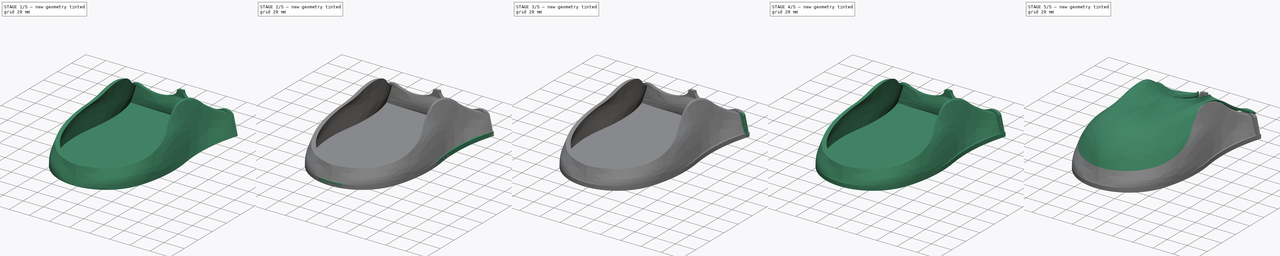
[diagram: build sequence overview — one tinted view per stage of 5, left to right]
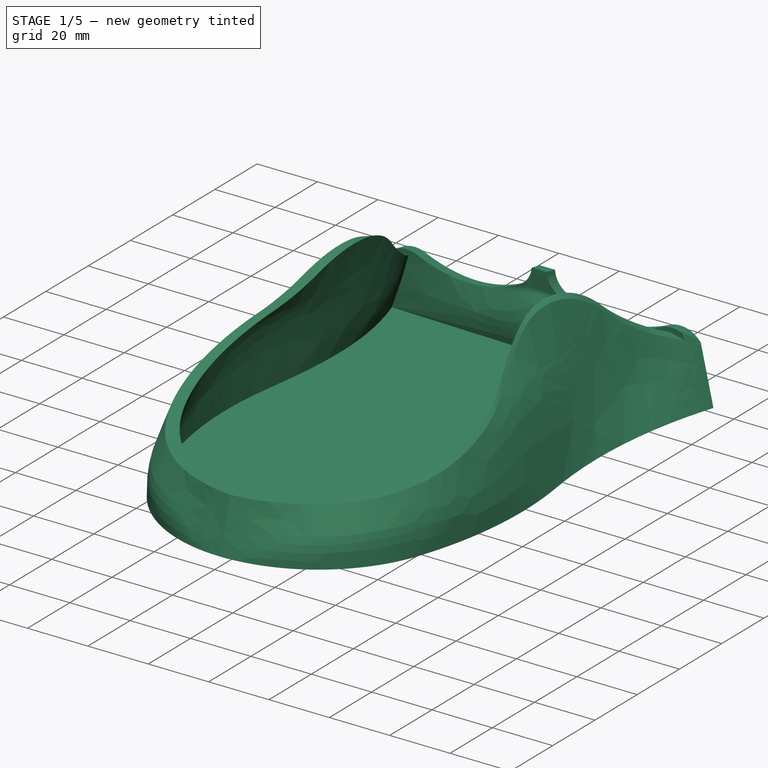
[diagram: stage 1 of 5 — iso view after this stage's code; geometry added in this stage tinted green]
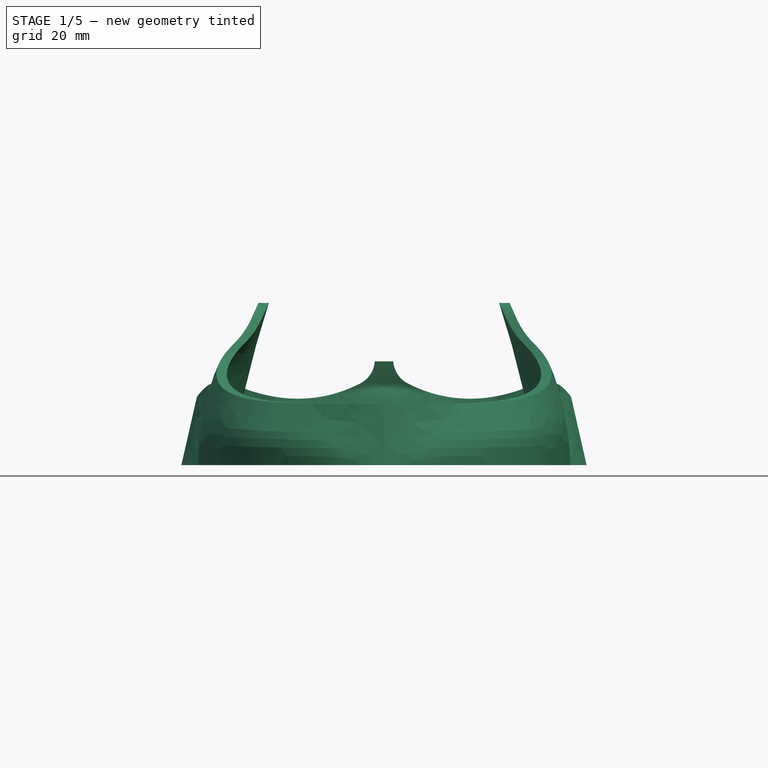
[diagram: stage 1 of 5 — front view after this stage's code; geometry added in this stage tinted green]
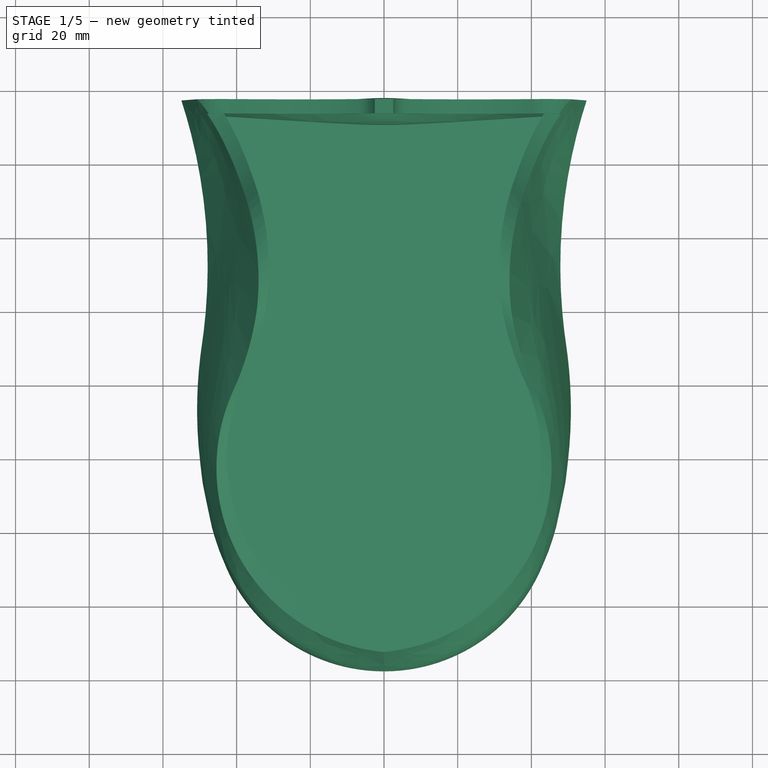
[diagram: stage 1 of 5 — top view after this stage's code; geometry added in this stage tinted green]
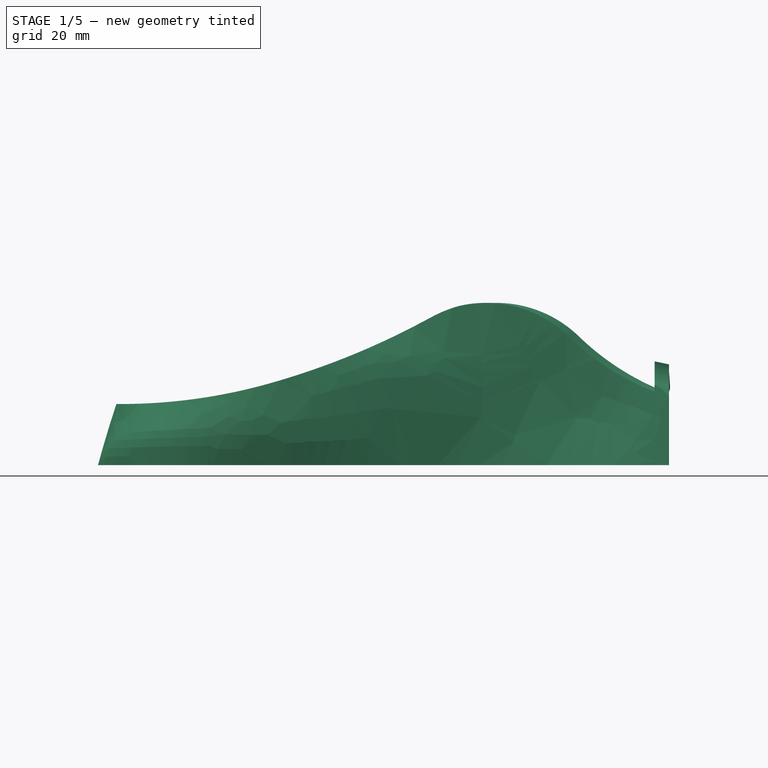
[diagram: stage 1 of 5 — right view after this stage's code; geometry added in this stage tinted green]
FCSTD DOCUMENT  (FreeCAD 2023.114R26244 +5346 (Git))
Label: Mouse
License: All rights reserved
LicenseURL: http://en.wikipedia.org/wiki/All_rights_reserved
objects: Part::FeaturePython×28, PartDesign::FeatureWrap×20, Sketcher::SketchObject×12, PartDesign::Solid×11, PartDesign::SubShapeBinder×9, Surface::Filling×8, Part::SubShapeBinder×6, PartDesign::Boolean×3, PartDesign::Mirrored×3, PartDesign::Pad×3, PartDesign::Split×3, PartDesign::Plane×2, App::FeaturePython×2, App::DocumentObjectGroup×2, PartDesign::Body×2, Spreadsheet::Sheet×1, Part::Mirroring×1, Part::Compound×1, PartDesign::Extrusion×1
note: 164 computed .brp shape members not serialized (recipe doc carries the construction recipe); baked Part::Feature solids carry a one-line shape summary decoded from their .brp

FEATURE [PartDesign::Solid] Split002_i2
  Active = true
  FixShape = 1
  InvalidShape = false
  Parent = -> Split002
  TreeRank = 495
  ValidateShape = false
FEATURE [PartDesign::Solid] Split002_i3
  Active = false
  FixShape = 1
  InvalidShape = false
  Parent = -> Split002
  TreeRank = 496
  ValidateShape = false
FEATURE [PartDesign::Solid] Split002_i4
  Active = false
  FixShape = 1
  InvalidShape = false
  Parent = -> Split002
  TreeRank = 497
  ValidateShape = false
FEATURE [PartDesign::Boolean] Boolean002
  BaseFeature = -> Split002
  ClaimAllChildren = false
  ExportMode = 0
  FixShape = 1
  Group = -> [Reference006,Reference007,Reference008]
  InvalidShape = false
  NewSolid = false
  Suppress = false
  TreeRank = 506
  Type = 0
  ValidateShape = false
  _ExportChildren = -> [Reference006,Reference007,Reference008]
  _GroupVersion = 1
FEATURE [Part::FeaturePython] Assembly  # WARN: FeaturePython — macro-defined, semantics opaque (R4)
  AutoRelax = true
  BuildShape = 0
  FixShape = 1
  Freeze = false
  Group = -> [Constraints,Elements,Parts]
  InvalidShape = false
  TreeRank = 511
  ValidateShape = false
  Verbose = false
  _LinkVersion = 1
  _SolverType = 1
  _Version = 1
FEATURE [Part::FeaturePython] Parts  # WARN: FeaturePython — macro-defined, semantics opaque (R4)
  FixShape = 1
  Group = -> [Body,Compound]
  GroupMode = 0
  InvalidShape = false
  TreeRank = 510
  ValidateShape = false
  _LinkVersion = 1
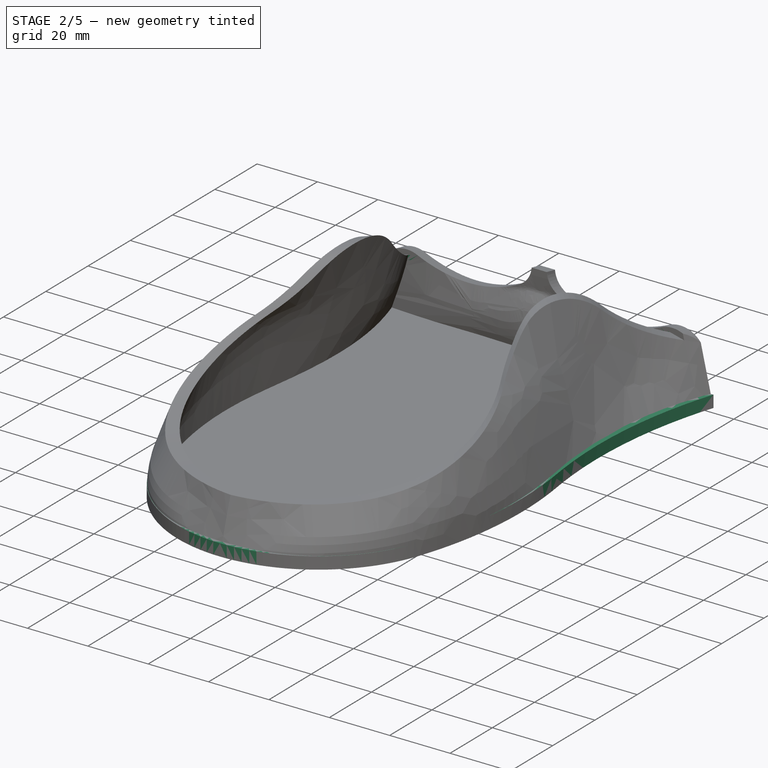
[diagram: stage 2 of 5 — iso view after this stage's code; geometry added in this stage tinted green]
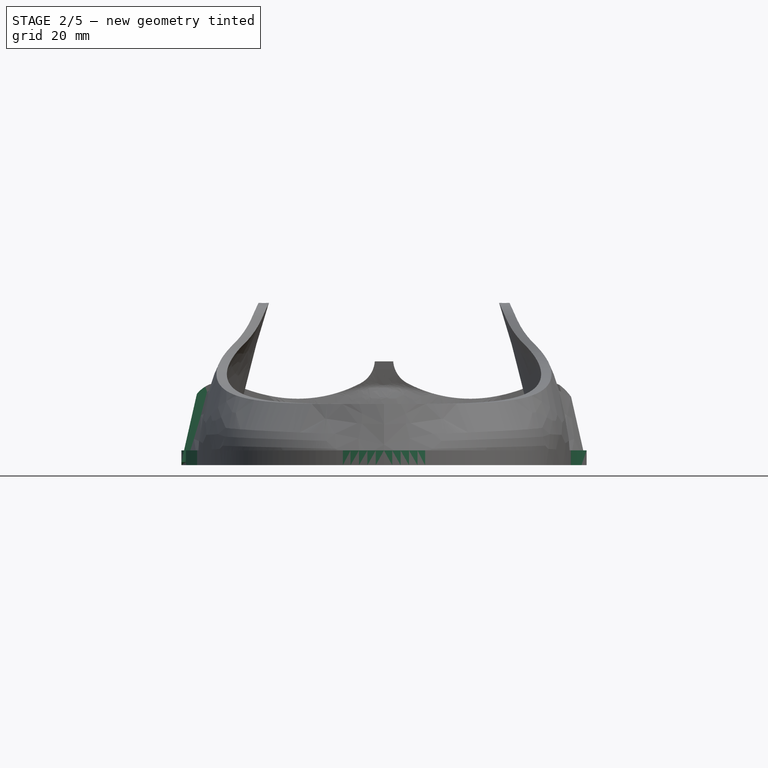
[diagram: stage 2 of 5 — front view after this stage's code; geometry added in this stage tinted green]
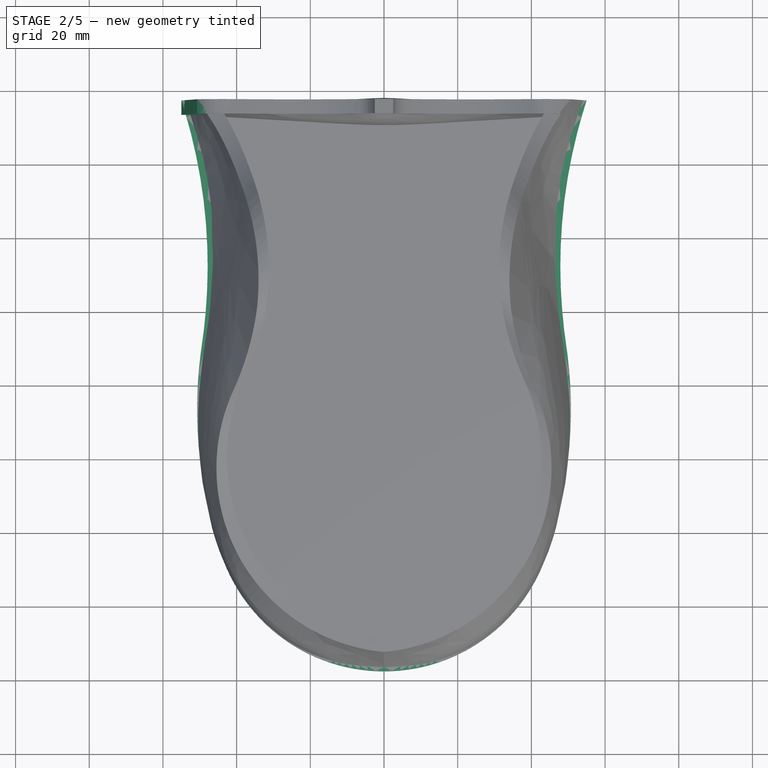
[diagram: stage 2 of 5 — top view after this stage's code; geometry added in this stage tinted green]
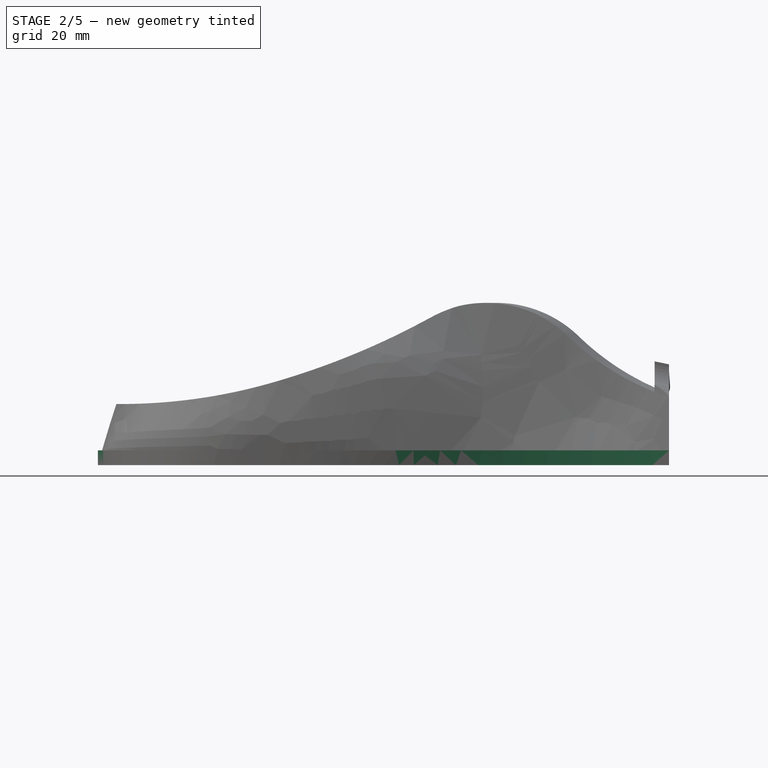
[diagram: stage 2 of 5 — right view after this stage's code; geometry added in this stage tinted green]
FEATURE [PartDesign::Solid] Split001_i1
  Active = true
  FixShape = 1
  InvalidShape = false
  Parent = -> Split001
  TreeRank = 483
  ValidateShape = false
FEATURE [PartDesign::Solid] Split001_i2
  Active = false
  FixShape = 1
  InvalidShape = false
  Parent = -> Split001
  TreeRank = 484
  ValidateShape = false
FEATURE [PartDesign::Split] Split002
  BaseFeature = -> Pad002
  FixShape = 1
  Fragment = false
  InvalidShape = false
  Mode = 0
  NewSolid = false
  Solids = -> [Split002_i0,Split002_i1,Split002_i2,Split002_i3,Split002_i4]
  Suppress = false
  Tolerance = 0
  Tools = -> [Wrap028,Boolean001]
  TreeRank = 487
  ValidateShape = false
  _Version = 1
FEATURE [PartDesign::Solid] Split002_i0
  Active = false
  FixShape = 1
  InvalidShape = false
  Parent = -> Split002
  TreeRank = 486
  ValidateShape = false
FEATURE [PartDesign::Solid] Split002_i1
  Active = false
  FixShape = 1
  InvalidShape = false
  Parent = -> Split002
  TreeRank = 488
  ValidateShape = false
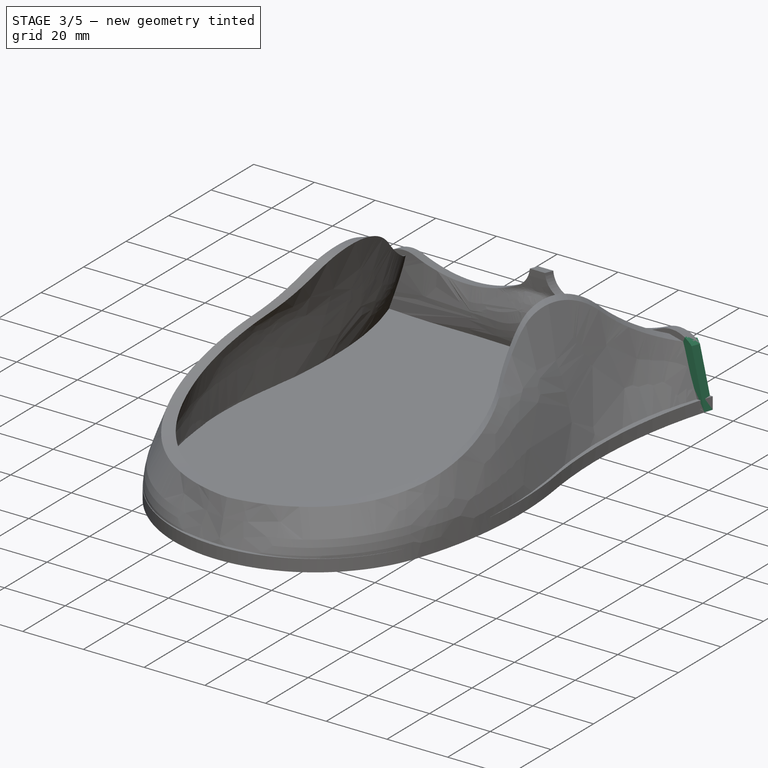
[diagram: stage 3 of 5 — iso view after this stage's code; geometry added in this stage tinted green]
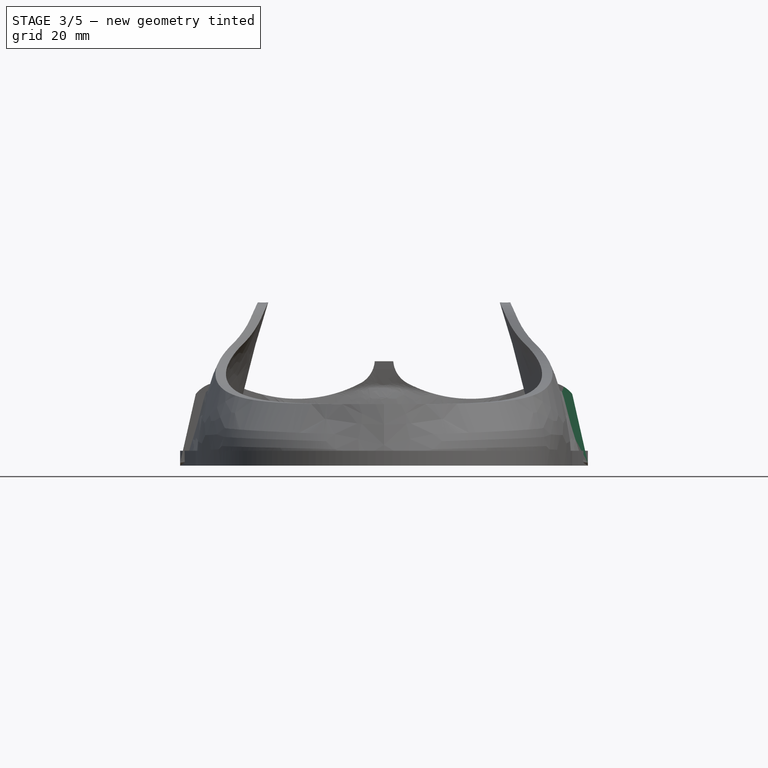
[diagram: stage 3 of 5 — front view after this stage's code; geometry added in this stage tinted green]
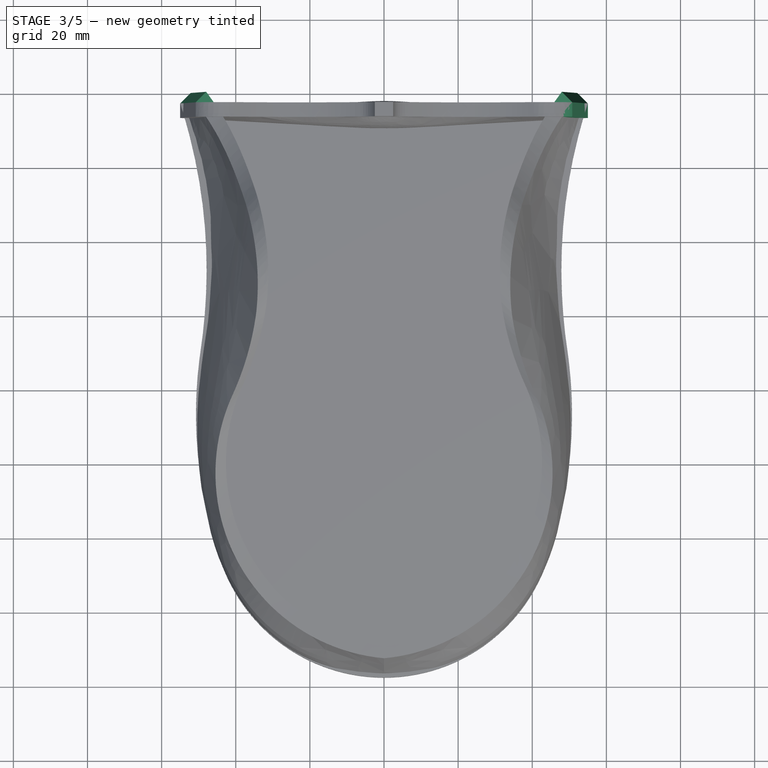
[diagram: stage 3 of 5 — top view after this stage's code; geometry added in this stage tinted green]
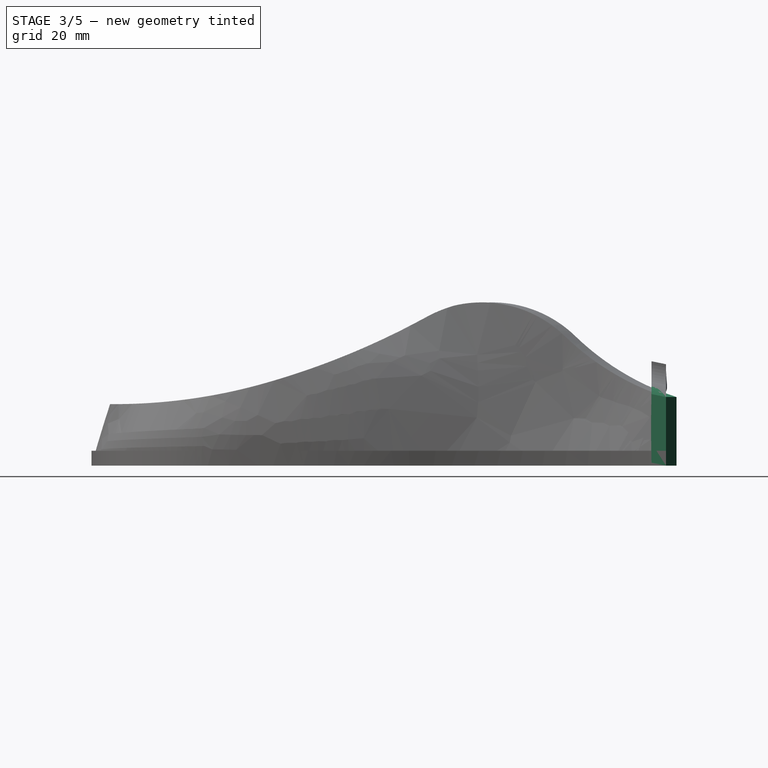
[diagram: stage 3 of 5 — right view after this stage's code; geometry added in this stage tinted green]
FEATURE [PartDesign::Pad] Pad003
  AddSubType = 0
  AlongSketchNormal = false
  AutoTaperInnerAngle = true
  CheckUpToFaceLimits = true
  ClaimChildren = false
  Direction = (-1.74783e-09,-0.997596,0.204912)
  Fit = 0
  FitJoin = 0
  FixShape = 1
  InnerFit = 0
  InnerFitJoin = 0
  InvalidShape = false
  Length = 4
  Length2 = 100
  Linearize = true
  NewSolid = true
  Profile = -> Wrap028 [Face1]
  Suppress = false
  TaperInnerAngle = 0
  TaperInnerAngleRev = 0
  TreeRank = 475
  Type = 0
  ValidateShape = false
  _ProfileBasedVersion = 1
  expr: Length = <<p>>.Wall * 2
FEATURE [PartDesign::Body] Body
  AutoGroupSolids = false
  ClaimAllChildren = false
  ExportMode = 0
  FixShape = 1
  Group = -> [Sketch014,Import,Import001,DatumPlane,Sketch,Sketch015,Import002,Wrap011,Wrap012,Wrap015,Mirrored,Sketch017,Sketch018,Wrap017,Wrap025,Extrusion,Boolean,Import004,DatumPlane001,Wrap026,Mirrored001,Wrap027,Wrap028,Pad,Mirrored002,Boolean001,Split,Pad003,Split_i0,Split_i1,Split_i2,Split001,Wrap029,Pad002,Split001_i0,Split001_i2,Split001_i1,Split002,Split002_i0,Split002_i1,Split002_i2,Split002_i3,+3 more]
  InvalidShape = false
  Origin = -> Origin
  Tip = -> Boolean002
  TreeRank = 498
  ValidateShape = false
  _ExportChildren = -> [Sketch014,Import,Import001,DatumPlane,Sketch,Sketch015,Import002,Wrap011,Wrap012,Wrap015,Mirrored,Sketch017,Sketch018,Wrap017,Wrap025,Extrusion,Import004,DatumPlane001,Wrap026,Mirrored001,Wrap027,Pad,Mirrored002,Split,Pad003,Split001,Wrap029,Pad002,Split002,Boolean002,Import005]
  _GroupVersion = 1
FEATURE [PartDesign::Split] Split
  BaseFeature = -> Boolean001
  FixShape = 1
  Fragment = false
  InvalidShape = false
  Mode = 0
  NewSolid = false
  Solids = -> [Split_i0,Split_i1,Split_i2]
  Suppress = false
  Tolerance = 0
  Tools = -> [Wrap028]
  TreeRank = 473
  ValidateShape = true
  _Version = 1
FEATURE [PartDesign::Solid] Split_i0
  Active = true
  FixShape = 1
  InvalidShape = false
  Parent = -> Split
  TreeRank = 471
  ValidateShape = false
FEATURE [PartDesign::Solid] Split_i1
  Active = false
  FixShape = 1
  InvalidShape = false
  Parent = -> Split
  TreeRank = 472
  ValidateShape = false
FEATURE [PartDesign::Solid] Split_i2
  Active = false
  FixShape = 1
  InvalidShape = false
  Parent = -> Split
  TreeRank = 474
  ValidateShape = false
FEATURE [PartDesign::Split] Split001
  BaseFeature = -> Pad003
  FixShape = 1
  Fragment = false
  InvalidShape = false
  Mode = 0
  NewSolid = false
  Solids = -> [Split001_i0,Split001_i1,Split001_i2]
  Suppress = false
  Tolerance = 0
  Tools = -> [Boolean]
  TreeRank = 478
  ValidateShape = false
  _Version = 1
FEATURE [PartDesign::Solid] Split001_i0
  Active = false
  FixShape = 1
  InvalidShape = false
  Parent = -> Split001
  TreeRank = 477
  ValidateShape = false
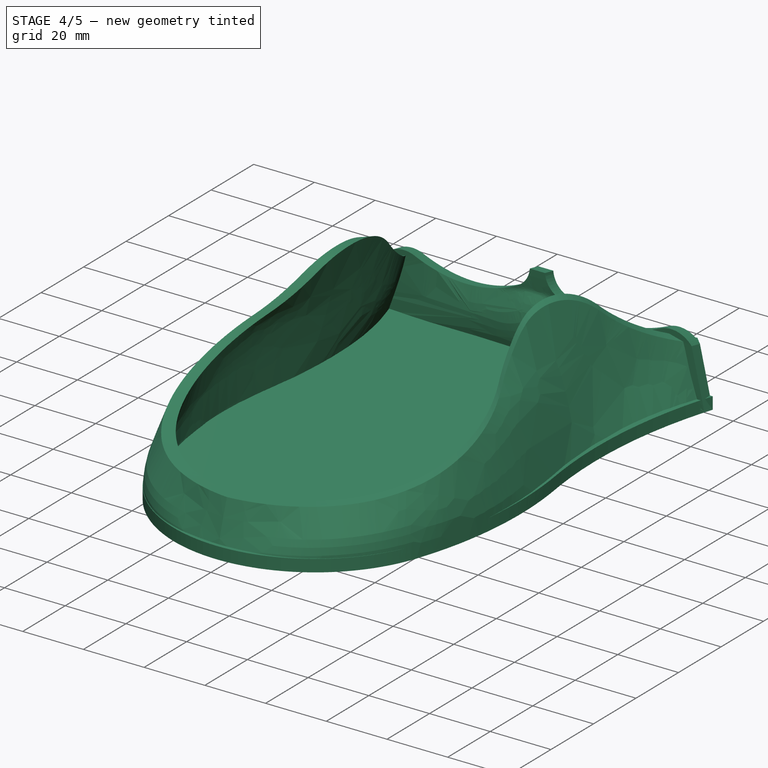
[diagram: stage 4 of 5 — iso view after this stage's code; geometry added in this stage tinted green]
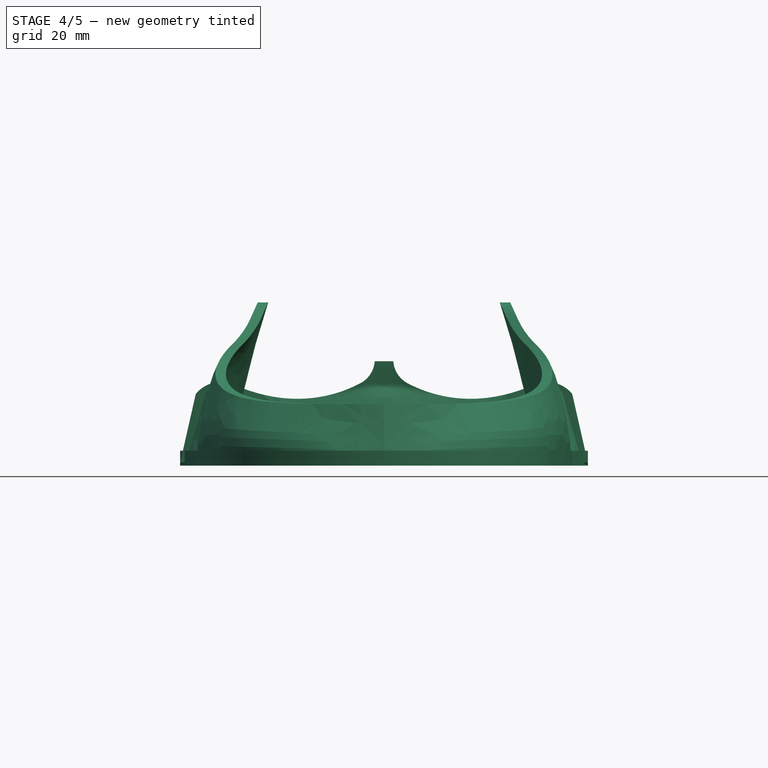
[diagram: stage 4 of 5 — front view after this stage's code; geometry added in this stage tinted green]
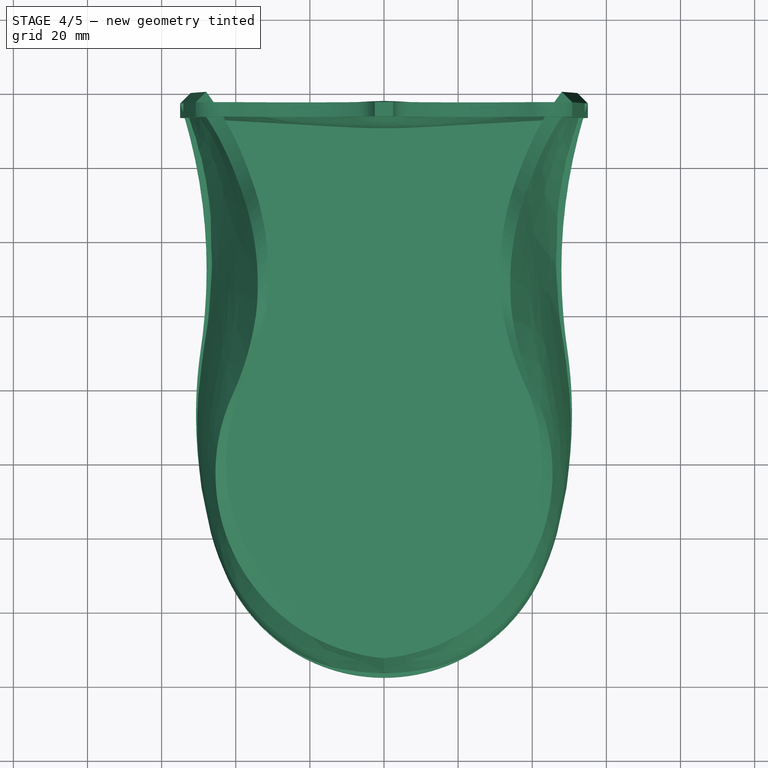
[diagram: stage 4 of 5 — top view after this stage's code; geometry added in this stage tinted green]
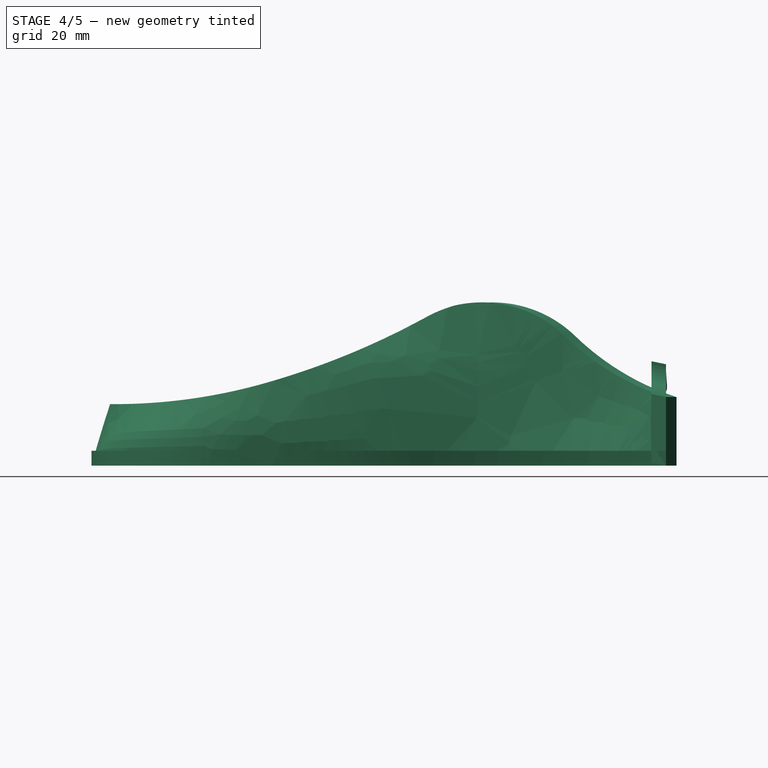
[diagram: stage 4 of 5 — right view after this stage's code; geometry added in this stage tinted green]
FEATURE [Sketcher::SketchObject] Sketch003  label="Top Outline"
  ArcFitTolerance = 1e-06
  AttachmentSupport = -> [XY_Plane001]
  ExternalBSplineMaxDegree = 5
  ExternalBSplineTolerance = 0.0001
  FixShape = 1
  FullyConstrained = false
  InternalTolerance = 1e-06
  InvalidShape = false
  MakeInternals = false
  MapMode = 5
  Support = -> [XY_Plane001]
  TreeRank = 64
  ValidateShape = false
  sketch-geometry (3):
    g0: ArcOfCircle CenterX=-110.422 CenterY=50.3952 CenterZ=0 NormalX=0 NormalY=0 NormalZ=1 AngleXU=0 Radius=76.6136 StartAngle=5.85042 EndAngle=6.94536
    g1: ArcOfCircle CenterX=4.51919 CenterY=-2.70465 CenterZ=0 NormalX=0 NormalY=0 NormalZ=1 AngleXU=0 Radius=50 StartAngle=2.70882 EndAngle=4.62188
    g2: GeomPoint X=-36.0276 Y=32.0877 Z=0
  constraints (7):
    c: PointOnObject(g1,g-2)
    c: Tangent(g1,g0) = 1.5708
    c: DistanceX(g-2,g0) = -50
    c: DistanceY(g1,g0) = 150
    c: PointOnObject(g2,g0)
    c: Radius(g1) = 50
    c: DistanceY(g1) = -52.5
FEATURE [Sketcher::SketchObject] Sketch004  label="Side Max Outline"
  ArcFitTolerance = 1e-06
  AttachmentSupport = -> [YZ_Plane001]
  ExternalBSplineMaxDegree = 5
  ExternalBSplineTolerance = 0.0001
  ExternalGeometry = -> [Sketch003]
  FixShape = 1
  FullyConstrained = true
  InternalTolerance = 1e-06
  InvalidShape = false
  MakeInternals = false
  MapMode = 5
  Placement = pos=(0,0,0) rot=(0.57735,0.57735,0.57735;2.0944rad)
  Support = -> [YZ_Plane001]
  TreeRank = 78
  ValidateShape = false
  sketch-geometry (4):
    g0: ArcOfCircle CenterX=-10.3258 CenterY=-14.1982 CenterZ=0 NormalX=0 NormalY=0 NormalZ=1 AngleXU=0 Radius=44.5 StartAngle=1.68733 EndAngle=2.81686
    g1: ArcOfCircle CenterX=6.999 CenterY=-162.188 CenterZ=0 NormalX=0 NormalY=0 NormalZ=1 AngleXU=0 Radius=193.5 StartAngle=1.45426 EndAngle=1.68733
    g2: ArcOfCircle CenterX=91.7878 CenterY=97.9142 CenterZ=0 NormalX=0 NormalY=0 NormalZ=1 AngleXU=0 Radius=85 StartAngle=4.21856 EndAngle=4.77964
    g3: ArcOfCircle CenterX=22.3471 CenterY=-31.0829 CenterZ=0 NormalX=0 NormalY=0 NormalZ=1 AngleXU=0 Radius=61.5 StartAngle=1.07697 EndAngle=1.45426
  constraints (13):
    c: Tangent(g1,g0) = -1.5708
    c: DistanceY(g0) = 30
    c: Horizontal(g1,g0)
    c: Tangent(g3,g1) = -1.5708
    c: Tangent(g3,g2) = 1.5708
    c: Radius(g0) = 44.5
    c: Radius(g1) = 193.5
    c: Radius(g3) = 61.5
    c: Radius(g2) = 85
    c: DistanceX(g0) = -15.5
    c: Vertical(g2,g-3)
    c: Coincident(g-4,g0)
    c: DistanceX(g1,g2) = 22
FEATURE [Sketcher::SketchObject] Sketch005  label="Click Outline"
  ArcFitTolerance = 1e-06
  ExternalBSplineMaxDegree = 5
  ExternalBSplineTolerance = 0.0001
  ExternalGeometry = -> [Sketch003,Sketch004]
  FixShape = 1
  FullyConstrained = true
  InternalTolerance = 1e-06
  InvalidShape = false
  MakeInternals = false
  Placement = pos=(-19.3333,97.5,3.88855) rot=(1,0,0;1.5708rad)
  TreeRank = 72
  ValidateShape = false
  sketch-geometry (3):
    g0: ArcOfCircle CenterX=-23.684 CenterY=-4.7603 CenterZ=0 NormalX=0 NormalY=0 NormalZ=1 AngleXU=0 Radius=9.39 StartAngle=1.1287 EndAngle=2.40927
    g1: ArcOfCircle CenterX=-4.47852 CenterY=35.8138 CenterZ=0 NormalX=0 NormalY=0 NormalZ=1 AngleXU=0 Radius=35.5 StartAngle=4.27029 EndAngle=5.17401
    g2: ArcOfCircle CenterX=9.70761 CenterY=7.29759 CenterZ=0 NormalX=0 NormalY=0 NormalZ=1 AngleXU=0 Radius=3.65 StartAngle=5.17401 EndAngle=6.39858
  constraints (11):
    c: Tangent(g1,g0) = 1.5708
    c: Tangent(g2,g1) = -1.5708
    c: Radius(g2) = 3.65
    c: Radius(g1) = 35.5
    c: DistanceX(g0,g1) = 31
    c: Radius(g0) = 9.39
    c: DistanceY(g0,g2) = 6.2
    c: Vertical(g0,g-3)
    c: DistanceY(g2,g-4) = 1.5
    c: DistanceX(g0,g2) = 44
    c: DistanceX(g1,g2) = 2
FEATURE [Sketcher::SketchObject] Sketch006  label="Click Side"
  ArcFitTolerance = 1e-06
  AttachmentSupport = -> [Sketch005,Sketch003]
  ExternalBSplineMaxDegree = 5
  ExternalBSplineTolerance = 0.0001
  ExternalGeometry = -> [Sketch005,Sketch003]
  FixShape = 1
  FullyConstrained = true
  InternalTolerance = 1e-06
  InvalidShape = false
  MakeInternals = false
  MapMode = 13
  Placement = pos=(-45.3425,75.6959,1.80213) rot=(0.658121,-0.532389,-0.532389;1.97747rad)
  Support = -> [Sketch005,Sketch003]
  TreeRank = 67
  ValidateShape = false
  sketch-geometry (2):
    g0: ArcOfCircle CenterX=4.02138 CenterY=-135.427 CenterZ=0 NormalX=0 NormalY=0 NormalZ=1 AngleXU=0 Radius=141.5 StartAngle=1.35008 EndAngle=1.75787
    g1: ArcOfCircle CenterX=29.5267 CenterY=-21.7531 CenterZ=0 NormalX=0 NormalY=0 NormalZ=1 AngleXU=0 Radius=25 StartAngle=0.924032 EndAngle=1.35008
  constraints (6):
    c: Coincident(g0,g-3)
    c: Coincident(g1,g-5)
    c: Tangent(g1,g0) = -1.5708
    c: Radius(g0) = 141.5
    c: Radius(g1) = 25
    c: DistanceX(g0) = 35
FEATURE [Sketcher::SketchObject] Sketch011  label="Side Min Outline"
  ArcFitTolerance = 1e-06
  ExternalBSplineMaxDegree = 5
  ExternalBSplineTolerance = 0.0001
  ExternalGeometry = -> [Sketch003,Sketch005,Sketch004]
  FixShape = 1
  FullyConstrained = false
  InternalTolerance = 1e-06
  InvalidShape = false
  MakeInternals = false
  Placement = pos=(0,0,0) rot=(0.57735,0.57735,0.57735;2.0944rad)
  TreeRank = 107
  ValidateShape = false
  sketch-geometry (4):
    g0: ArcOfCircle CenterX=142.357 CenterY=106.065 CenterZ=0 NormalX=0 NormalY=0 NormalZ=1 AngleXU=0 Radius=110.201 StartAngle=4.03919 EndAngle=4.29317
    g1: ArcOfCircle CenterX=50.5274 CenterY=-9.08571 CenterZ=0 NormalX=0 NormalY=0 NormalZ=1 AngleXU=0 Radius=37.0821 StartAngle=0.897599 EndAngle=2.07234
    g2: ArcOfCircle CenterX=-67.4181 CenterY=206.024 CenterZ=0 NormalX=0 NormalY=0 NormalZ=1 AngleXU=0 Radius=208.241 StartAngle=4.98613 EndAngle=5.21393
    g3: ArcOfCircle CenterX=-51.3554 CenterY=148.82 CenterZ=0 NormalX=0 NormalY=0 NormalZ=1 AngleXU=0 Radius=148.825 StartAngle=4.7047 EndAngle=4.98613
  constraints (5):
    c: Tangent(g1,g0) = 1.5708
    c: Tangent(g2,g1) = 1.5708
    c: Tangent(g2,g3) = -1.5708
    c: Coincident(g3,g-5)
    c: Coincident(g-6,g0)
FEATURE [Sketcher::SketchObject] Sketch013  label="Click Outline Top"
  ArcFitTolerance = 1e-06
  ExternalBSplineMaxDegree = 5
  ExternalBSplineTolerance = 0.0001
  ExternalGeometry = -> [Sketch005]
  FixShape = 1
  FullyConstrained = true
  InternalTolerance = 1e-06
  InvalidShape = false
  MakeInternals = false
  TreeRank = 111
  ValidateShape = false
  sketch-geometry (3):
    g0: ArcOfCircle CenterX=-38.5322 CenterY=114.492 CenterZ=0 NormalX=0 NormalY=0 NormalZ=1 AngleXU=0 Radius=20.5 StartAngle=4.11872 EndAngle=5.25196
    g1: ArcOfCircle CenterX=-17.4678 CenterY=79.3173 CenterZ=0 NormalX=0 NormalY=0 NormalZ=1 AngleXU=0 Radius=20.5 StartAngle=1.09073 EndAngle=2.11037
    g2: ArcOfCircle CenterX=-10.3092 CenterY=93.0652 CenterZ=0 NormalX=0 NormalY=0 NormalZ=1 AngleXU=0 Radius=5 StartAngle=0.531906 EndAngle=1.09073
  constraints (9):
    c: Radius(g0) = 20.5
    c: Radius(g1) = 20.5
    c: Radius(g2) = 5
    c: Tangent(g1,g0) = 1.5708
    c: Tangent(g2,g1) = -1.5708
    c: Coincident(g0,g-3)
    c: DistanceX(g0) = -28
    c: Coincident(g-5,g1)
    c: Vertical(g2,g-4)
FEATURE [Part::FeaturePython] Mixed_curve001  label="Mixed_curve002"  # WARN: FeaturePython — macro-defined, semantics opaque (R4)
  Active = false
  ApproxTolerance = 0.001
  Continuity = 5
  DegreeMax = 5
  DegreeMin = 3
  Direction1 = (0,0,0)
  Direction2 = (0,0,0)
  FillFace1 = false
  FillFace2 = false
  FixShape = 1
  InvalidShape = false
  Parametrization = 0
  Samples = 100
  Shape1 = -> Sketch005
  Shape2 = -> Sketch013
  TreeRank = 112
  ValidateShape = false
FEATURE [PartDesign::FeatureWrap] Wrap002  label="Mixed_curve003"
  AddSubType = 0
  FixShape = 1
  Frozen = false
  InvalidShape = false
  NewSolid = false
  Suppress = false
  TreeRank = 113
  Type = 2
  ValidateShape = false
  WrapFeature = -> Mixed_curve001
FEATURE [Part::FeaturePython] Mixed_curve002  label="Mixed_curve004"  # WARN: FeaturePython — macro-defined, semantics opaque (R4)
  Active = false
  ApproxTolerance = 0.001
  Continuity = 5
  DegreeMax = 5
  DegreeMin = 3
  Direction1 = (0,0,0)
  Direction2 = (0,0,0)
  FillFace1 = false
  FillFace2 = false
  FixShape = 1
  InvalidShape = false
  Parametrization = 0
  Samples = 100
  Shape1 = -> Sketch011
  Shape2 = -> Sketch003
  TreeRank = 116
  ValidateShape = false
FEATURE [PartDesign::FeatureWrap] Wrap003  label="Mixed_curve005"
  AddSubType = 0
  FixShape = 1
  Frozen = false
  InvalidShape = false
  NewSolid = false
  Suppress = false
  TreeRank = 117
  Type = 2
  ValidateShape = false
  WrapFeature = -> Mixed_curve002
FEATURE [Part::FeaturePython] Freehand_BSpline001  label="Freehand_BSpline002"  # WARN: FeaturePython — macro-defined, semantics opaque (R4)
  Data = (4) [(6.31239e-15,51.498,23.0695),(-4.22175,60.8034,20.018),(-4.90672,73.5989,15.6061),(-6,95.6011,10.7659)]
  DataType = [1,0,0,1]
  FixShape = 1
  InvalidShape = false
  Parametrization = 1
  Periodic = false
  Support = -> [Sketch004,Wrap002]
  Tangents = (4) [(0,0,0),(0,0,0),(0,0,0),(0,0,0)]
  Tolerance = 1e-05
  TreeRank = 120
  ValidateShape = false
FEATURE [PartDesign::FeatureWrap] Wrap004  label="Click Connect"
  AddSubType = 0
  FixShape = 1
  Frozen = false
  InvalidShape = false
  NewSolid = false
  Suppress = false
  TreeRank = 121
  Type = 2
  ValidateShape = false
  WrapFeature = -> Freehand_BSpline001
FEATURE [Part::FeaturePython] Freehand_BSpline002  label="Freehand_BSpline004"  # WARN: FeaturePython — macro-defined, semantics opaque (R4)
  Data = (5) [(-16.9635,99.8111,4.86921),(-16.0424,83.8443,6.5435),(-15.5227,61.2399,17.5526),(-8.75412,45.1169,23.0088),(-1.11468e-16,29.498,30)]
  DataType = [1,0,0,0,1]
  FixShape = 1
  InvalidShape = false
  Parametrization = 1
  Periodic = false
  Support = -> [Wrap002,Sketch004]
  Tangents = (5) [(0,0,0),(0,0,0),(0,0,0),(0,0,0),(0,0,0)]
  Tolerance = 1e-05
  TreeRank = 124
  ValidateShape = false
FEATURE [PartDesign::FeatureWrap] Wrap005  label="Finger Groove"
  AddSubType = 0
  FixShape = 1
  Frozen = false
  InvalidShape = false
  NewSolid = false
  Suppress = false
  TreeRank = 125
  Type = 2
  ValidateShape = false
  WrapFeature = -> Freehand_BSpline002
FEATURE [Part::FeaturePython] Freehand_BSpline003  label="Freehand_BSpline006"  # WARN: FeaturePython — macro-defined, semantics opaque (R4)
  Data = (3) [(-7.19589e-15,-1.27177,31.1356),(-29.1445,10.6827,29.374),(-40.8712,18.2646,16.2275)]
  DataType = [1,0,1]
  FixShape = 1
  InvalidShape = false
  Parametrization = 1
  Periodic = false
  Support = -> [Sketch004,Wrap003]
  Tangents = (3) [(0,0,0),(0,0,0),(0,0,0)]
  Tolerance = 1e-05
  TreeRank = 128
  ValidateShape = false
FEATURE [PartDesign::FeatureWrap] Wrap006  label="Side Rib"
  AddSubType = 0
  FixShape = 1
  Frozen = false
  InvalidShape = false
  NewSolid = false
  Suppress = false
  TreeRank = 129
  Type = 2
  ValidateShape = false
  WrapFeature = -> Freehand_BSpline003
FEATURE [Part::FeaturePython] JoinCurve  # WARN: FeaturePython — macro-defined, semantics opaque (R4)
  Active = false
  ApproxTolerance = 0.001
  Continuity = 5
  CornerBreak = false
  DegreeMax = 5
  DegreeMin = 3
  Edges = -> [Wrap003]
  FixShape = 1
  ForceClosed = false
  ForceContact = true
  InvalidShape = false
  Parametrization = 0
  Reverse = false
  Samples = 100
  StartOffset = 0
  Tolerance = 0.01
  TreeRank = 132
  ValidateShape = false
FEATURE [PartDesign::FeatureWrap] Wrap007  label="JoinCurve001"
  AddSubType = 0
  FixShape = 1
  Frozen = false
  InvalidShape = false
  NewSolid = false
  Suppress = false
  TreeRank = 133
  Type = 2
  ValidateShape = false
  WrapFeature = -> JoinCurve
FEATURE [Part::FeaturePython] JoinCurve001  label="JoinCurve002"  # WARN: FeaturePython — macro-defined, semantics opaque (R4)
  Active = false
  ApproxTolerance = 0.001
  Continuity = 5
  CornerBreak = false
  DegreeMax = 5
  DegreeMin = 3
  Edges = -> [Wrap002]
  FixShape = 1
  ForceClosed = false
  ForceContact = true
  InvalidShape = false
  Parametrization = 0
  Reverse = false
  Samples = 100
  StartOffset = 0
  Tolerance = 0.01
  TreeRank = 136
  ValidateShape = false
FEATURE [PartDesign::FeatureWrap] Wrap008  label="JoinCurve003"
  AddSubType = 0
  FixShape = 1
  Frozen = false
  InvalidShape = false
  NewSolid = false
  Suppress = false
  TreeRank = 137
  Type = 2
  ValidateShape = false
  WrapFeature = -> JoinCurve001
FEATURE [Part::FeaturePython] JoinCurve002  label="JoinCurve004"  # WARN: FeaturePython — macro-defined, semantics opaque (R4)
  Active = false
  ApproxTolerance = 0.001
  Continuity = 5
  CornerBreak = false
  DegreeMax = 5
  DegreeMin = 3
  Edges = -> [Sketch004]
  FixShape = 1
  ForceClosed = false
  ForceContact = true
  InvalidShape = false
  Parametrization = 0
  Reverse = false
  Samples = 100
  StartOffset = 0
  Tolerance = 0.01
  TreeRank = 140
  ValidateShape = false
FEATURE [PartDesign::FeatureWrap] Wrap009  label="JoinCurve005"
  AddSubType = 0
  FixShape = 1
  Frozen = false
  InvalidShape = false
  NewSolid = false
  Suppress = false
  TreeRank = 141
  Type = 2
  ValidateShape = false
  WrapFeature = -> JoinCurve002
FEATURE [Part::FeaturePython] Gordon  label="Top Shell Half"  # WARN: FeaturePython — macro-defined, semantics opaque (R4)
  FixShape = 1
  FlipNormal = false
  InvalidShape = false
  MaxCtrlPts = 80
  Output = 0
  SamplesU = 16
  SamplesV = 16
  Sources = -> [Wrap009,Wrap007,Wrap008,Wrap004,Wrap005,Wrap006]
  Tol2D = 1e-05
  Tol3D = 0.1
  TreeRank = 157
  ValidateShape = false
FEATURE [Spreadsheet::Sheet] Spreadsheet  label="p"
  PythonMode = false
  ShowCells = 0
  TreeRank = 56
  cells = A1=Name; B1=Value; A2=Wall; B2(Wall)==2mm; A3=ClickTravel; B3(ClickTravel)==1.5mm
FEATURE [PartDesign::FeatureWrap] Wrap010  label="Shell Half Surface"
  AddSubType = 0
  FixShape = 1
  Frozen = false
  InvalidShape = false
  NewSolid = false
  Suppress = false
  TreeRank = 199
  Type = 2
  ValidateShape = false
  WrapFeature = -> Gordon
FEATURE [Part::FeaturePython] Freehand_BSpline  # WARN: FeaturePython — macro-defined, semantics opaque (R4)
  Data = (3) [(-1.20927e-14,-27.705,26.7678),(-12.3893,-27.2797,24.8398),(-43.4115,-16.94,4.02952)]
  DataType = [1,0,1]
  FixShape = 1
  InvalidShape = false
  Parametrization = 1
  Periodic = false
  Support = -> [Wrap009,Wrap007]
  Tangents = (3) [(0,0,0),(0,0,0),(0,0,0)]
  Tolerance = 1e-05
  TreeRank = 243
  ValidateShape = false
FEATURE [PartDesign::FeatureWrap] Wrap  label="Back Rib"
  AddSubType = 0
  FixShape = 1
  Frozen = false
  InvalidShape = false
  NewSolid = false
  Suppress = false
  TreeRank = 244
  Type = 2
  ValidateShape = false
  WrapFeature = -> Freehand_BSpline
FEATURE [Part::SubShapeBinder] Import  label="Import(Solid001 (Mirror #1))"
  BindCopyOnChange = 0
  BindMode = 0
  ClaimChildren = false
  Context = -> Assembly [Parts.Body.Import.]
  EdgeTolerance = 1e-06
  FillStyle = 0
  FixShape = 1
  Fuse = false
  InvalidShape = false
  MakeFace = false
  MergeEdges = true
  OffsetFill = false
  OffsetIntersection = false
  OffsetJoinType = 0
  OffsetOpenResult = false
  Outline = false
  PartialLoad = false
  Relative = true
  SplitEdges = false
  Support = -> [Part__Mirroring]
  TightBound = false
  TreeRank = 258
  ValidateShape = false
  _Version = 8
FEATURE [Part::SubShapeBinder] Import001  label="Import001(Solid)"
  BindCopyOnChange = 0
  BindMode = 0
  ClaimChildren = false
  Context = -> Assembly [Parts.Body.Import001.]
  EdgeTolerance = 1e-06
  FillStyle = 0
  FixShape = 1
  Fuse = false
  InvalidShape = false
  MakeFace = false
  MergeEdges = true
  OffsetFill = false
  OffsetIntersection = false
  OffsetJoinType = 0
  OffsetOpenResult = false
  Outline = false
  PartialLoad = false
  Relative = true
  SplitEdges = false
  Support = -> [Solid]
  TightBound = false
  TreeRank = 259
  ValidateShape = false
  _Version = 8
FEATURE [Part::SubShapeBinder] Import002  label="Import002(Compound)"
  BindCopyOnChange = 0
  BindMode = 0
  ClaimChildren = false
  Context = -> Assembly [Parts.Body.Import002.]
  EdgeTolerance = 1e-06
  FillStyle = 0
  FixShape = 1
  Fuse = false
  InvalidShape = false
  MakeFace = false
  MergeEdges = true
  OffsetFill = false
  OffsetIntersection = false
  OffsetJoinType = 0
  OffsetOpenResult = false
  Outline = false
  PartialLoad = false
  Relative = true
  SplitEdges = false
  Support = -> [Compound]
  TightBound = false
  TreeRank = 263
  ValidateShape = false
  _Version = 8
FEATURE [Part::SubShapeBinder] Import003  label="Import003(Top Shell Half001)"
  AttacherType = Attacher::AttachEngine3D
  BindCopyOnChange = 0
  BindMode = 0
  ClaimChildren = false
  Context = -> Body001 [Import003.]
  EdgeTolerance = 1e-06
  FillStyle = 0
  FixShape = 1
  Fuse = false
  InvalidShape = false
  MakeFace = false
  MergeEdges = true
  OffsetFill = false
  OffsetIntersection = false
  OffsetJoinType = 0
  OffsetOpenResult = false
  Outline = false
  PartialLoad = false
  Relative = true
  SplitEdges = false
  Support = -> [Clone]
  TightBound = false
  TreeRank = 327
  ValidateShape = false
  _Version = 8
FEATURE [Sketcher::SketchObject] Sketch016
  ArcFitTolerance = 1e-06
  AttachmentSupport = -> [YZ_Plane001]
  ExternalBSplineMaxDegree = 5
  ExternalBSplineTolerance = 0.0001
  ExternalGeometry = -> [Import003]
  FixShape = 1
  FullyConstrained = true
  InternalTolerance = 1e-06
  InvalidShape = false
  MakeInternals = false
  MapMode = 5
  Placement = pos=(0,0,0) rot=(0.57735,0.57735,0.57735;2.0944rad)
  Support = -> [YZ_Plane001]
  TreeRank = 326
  ValidateShape = false
  sketch-geometry (4):
    g0: LineSegment StartX=-72.5 StartY=33.4064 StartZ=0 EndX=117.5 EndY=33.4064 EndZ=0
    g1: LineSegment StartX=117.5 StartY=33.4064 StartZ=0 EndX=117.5 EndY=-22 EndZ=0
    g2: LineSegment StartX=117.5 StartY=-22 StartZ=0 EndX=-72.5 EndY=-22 EndZ=0
    g3: LineSegment StartX=-72.5 StartY=-22 StartZ=0 EndX=-72.5 EndY=33.4064 EndZ=0
  constraints (12):
    c: Coincident(g0,g1)
    c: Coincident(g1,g2)
    c: Coincident(g2,g3)
    c: Coincident(g3,g0)
    c: Horizontal(g0)
    c: Horizontal(g2)
    c: Vertical(g1)
    c: Vertical(g3)
    c: Distance(g-5,g1) = 20
    c: Distance(g-3,g3) = 20
    c: Distance(g-3,g2) = 20
    c: Distance(g-4,g0) = 30
FEATURE [PartDesign::SubShapeBinder] Binder  label="Binder(Sketch016)"
  BindCopyOnChange = 0
  BindMode = 0
  ClaimChildren = false
  Context = -> Body001 [Binder.]
  EdgeTolerance = 1e-06
  FillStyle = 0
  FixShape = 1
  Fuse = false
  InvalidShape = false
  MakeFace = true
  MergeEdges = true
  OffsetFill = false
  OffsetIntersection = false
  OffsetJoinType = 0
  OffsetOpenResult = false
  Outline = false
  PartialLoad = false
  Relative = true
  SplitEdges = false
  Support = -> [Sketch016]
  TightBound = false
  TreeRank = 328
  ValidateShape = false
  _Version = 8
FEATURE [PartDesign::SubShapeBinder] Reference001  label="Reference001(*Sketch016)"
  BindCopyOnChange = 0
  BindMode = 0
  ClaimChildren = false
  Context = -> Body001 [Reference001.]
  EdgeTolerance = 1e-06
  FillStyle = 0
  FixShape = 1
  Fuse = false
  InvalidShape = false
  MakeFace = true
  MergeEdges = true
  OffsetFill = false
  OffsetIntersection = false
  OffsetJoinType = 0
  OffsetOpenResult = false
  Outline = false
  PartialLoad = false
  Relative = true
  SplitEdges = false
  Support = -> [Binder]
  TightBound = false
  TreeRank = 341
  ValidateShape = false
  _Version = 8
FEATURE [Part::FeaturePython] SplitCurve  # WARN: FeaturePython — macro-defined, semantics opaque (R4)
  Distance = 0
  FixShape = 1
  InvalidShape = false
  NormalizedParameters = [0,0.650001,1]
  Source = -> Import002 [?Edge17]
  TreeRank = 363
  ValidateShape = false
  Values = 65%
FEATURE [PartDesign::FeatureWrap] Wrap025  label="SplitCurve001"
  AddSubType = 0
  FixShape = 1
  Frozen = false
  InvalidShape = false
  NewSolid = false
  Suppress = false
  TreeRank = 366
  Type = 2
  ValidateShape = false
  WrapFeature = -> SplitCurve
FEATURE [PartDesign::SubShapeBinder] Reference002  label="Reference002(Extrusion)"
  BindCopyOnChange = 0
  BindMode = 0
  ClaimChildren = false
  Context = -> Body [Reference002.]
  EdgeTolerance = 1e-06
  FillStyle = 0
  FixShape = 1
  Fuse = false
  InvalidShape = false
  MakeFace = true
  MergeEdges = true
  OffsetFill = false
  OffsetIntersection = false
  OffsetJoinType = 0
  OffsetOpenResult = false
  Outline = false
  PartialLoad = false
  Relative = true
  SplitEdges = false
  Support = -> [Extrusion]
  TightBound = false
  TreeRank = 386
  ValidateShape = false
  _Version = 8
FEATURE [PartDesign::SubShapeBinder] Reference004  label="Reference004(Mirrored)"
  BindCopyOnChange = 0
  BindMode = 0
  ClaimChildren = false
  EdgeTolerance = 1e-06
  FillStyle = 0
  FixShape = 1
  Fuse = true
  InvalidShape = false
  MakeFace = true
  MergeEdges = true
  OffsetFill = false
  OffsetIntersection = false
  OffsetJoinType = 0
  OffsetOpenResult = false
  Outline = false
  PartialLoad = false
  Relative = true
  SplitEdges = false
  Support = -> [Mirrored]
  TightBound = false
  TreeRank = 385
  ValidateShape = false
  _Version = 8
FEATURE [PartDesign::Boolean] Boolean  label="Sides"
  ClaimAllChildren = false
  ExportMode = 0
  FixShape = 1
  Group = -> [Reference004,Reference002]
  InvalidShape = false
  NewSolid = true
  Suppress = false
  TreeRank = 466
  Type = 1
  ValidateShape = false
  _ExportChildren = -> [Reference004,Reference002]
  _GroupVersion = 1
FEATURE [Part::SubShapeBinder] Import004  label="Import004(Mixed_curve003)"
  BindCopyOnChange = 0
  BindMode = 0
  ClaimChildren = false
  Context = -> Assembly [Parts.Body.Import004.]
  EdgeTolerance = 1e-06
  FillStyle = 0
  FixShape = 1
  Fuse = false
  InvalidShape = false
  MakeFace = false
  MergeEdges = true
  OffsetFill = false
  OffsetIntersection = false
  OffsetJoinType = 0
  OffsetOpenResult = false
  Outline = false
  PartialLoad = false
  Relative = true
  SplitEdges = false
  Support = -> [Body001[Wrap002.]]
  TightBound = false
  TreeRank = 389
  ValidateShape = false
  _Version = 8
FEATURE [PartDesign::Plane] DatumPlane001
  AttachmentSupport = -> [Boolean]
  FixShape = 1
  InvalidShape = false
  Length = 110
  MapMode = 13
  MinimumLength = 10
  MinimumWidth = 10
  Placement = pos=(18.3333,97.5,-4.26028) rot=(0,0.707107,0.707107;3.14159rad)
  ResizeMode = 0
  Support = -> [Boolean]
  TreeRank = 410
  ValidateShape = false
  Width = 44.0069
FEATURE [Sketcher::SketchObject] Sketch018  label="Click Side Front"
  ArcFitTolerance = 1e-06
  AttachmentSupport = -> [DatumPlane001]
  ExternalBSplineMaxDegree = 5
  ExternalBSplineTolerance = 0.0001
  ExternalGeometry = -> [Import004,Boolean]
  FixShape = 1
  FullyConstrained = false
  InternalTolerance = 1e-06
  InvalidShape = false
  MakeInternals = false
  MapMode = 5
  Placement = pos=(18.3333,97.5,-4.26028) rot=(0,0.707107,0.707107;3.14159rad)
  Support = -> [DatumPlane001]
  TreeRank = 395
  ValidateShape = false
  expr: Constraints.travel = <<p>>.Wall + <<p>>.ClickTravel
  expr: Constraints[14] = .Constraints.travel
  expr: Constraints[15] = .Constraints.travel
  expr: Constraints[5] = .Constraints.travel
  sketch-geometry (7):
    g0: ArcOfCircle CenterX=28.1786 CenterY=15.5768 CenterZ=0 NormalX=0 NormalY=0 NormalZ=1 AngleXU=0 Radius=7.36583 StartAngle=3.21642 EndAngle=4.23197
    g1: ArcOfCircle CenterX=41.7348 CenterY=41.5892 CenterZ=0 NormalX=0 NormalY=0 NormalZ=1 AngleXU=0 Radius=36.6987 StartAngle=4.23197 EndAngle=4.85135
    g2: ArcOfCircle CenterX=40.7007 CenterY=48.9828 CenterZ=0 NormalX=0 NormalY=0 NormalZ=1 AngleXU=0 Radius=44.1642 StartAngle=4.85135 EndAngle=5.13377
    g3: ArcOfCircle CenterX=62.3247 CenterY=0.7402 CenterZ=0 NormalX=0 NormalY=0 NormalZ=1 AngleXU=0 Radius=8.70302 StartAngle=0.673231 EndAngle=1.99218
    g4: LineSegment [constr] StartX=42.1452 StartY=43.9627 StartZ=0 EndX=24.7744 EndY=9.0448 EndZ=0
    g5: LineSegment [constr] StartX=41.7348 StartY=41.5892 StartZ=0 EndX=46.8181 EndY=5.24431 EndZ=0
    g6: LineSegment [constr] StartX=62.3247 StartY=0.7402 StartZ=0 EndX=57.3333 EndY=11.8757 EndZ=0
  constraints (18):
    c: Tangent(g1,g0) = -1.5708
    c: Tangent(g2,g1) = -1.5708
    c: Tangent(g3,g2) = 1.5708
    c: Distance(g0,g-3) = 3.5  'travel'
    c: Coincident(g4,g-5)
    c: Distance(g-4,g0) = 3.5
    c: Coincident(g4,g0)
    c: PointOnObject(g-4,g4)
    c: Coincident(g5,g1)
    c: Coincident(g5,g1)
    c: PointOnObject(g-5,g5)
    c: Coincident(g6,g3)
    c: Coincident(g6,g-6)
    c: PointOnObject(g2,g6)
    c: Distance(g1,g-5) = 3.5
    c: Distance(g2,g-6) = 3.5
    c: Horizontal(g0,g-3)
    c: Coincident(g3,g-8)
FEATURE [Part::FeaturePython] JoinCurve004  label="JoinCurve008"  # WARN: FeaturePython — macro-defined, semantics opaque (R4)
  Active = false
  ApproxTolerance = 0.001
  Continuity = 5
  CornerBreak = false
  DegreeMax = 5
  DegreeMin = 3
  Edges = -> [Sketch018]
  FixShape = 1
  ForceClosed = false
  ForceContact = true
  InvalidShape = false
  Parametrization = 0
  Reverse = false
  Samples = 100
  StartOffset = 0
  Tolerance = 0.01
  TreeRank = 413
  ValidateShape = false
FEATURE [PartDesign::FeatureWrap] Wrap026  label="JoinCurve009"
  AddSubType = 0
  FixShape = 1
  Frozen = false
  InvalidShape = false
  NewSolid = false
  Suppress = false
  TreeRank = 414
  Type = 2
  ValidateShape = false
  WrapFeature = -> JoinCurve004
FEATURE [PartDesign::Mirrored] Mirrored001
  AddSubType = 0
  CopyShape = false
  FixShape = 1
  InvalidShape = false
  MirrorPlane = -> YZ_Plane
  NewSolid = false
  OriginalSubs = -> [Wrap026]
  Originals = -> [Wrap026]
  ParallelTransform = true
  SubTransform = false
  Suppress = false
  TreeRank = 415
  ValidateShape = false
  _Version = 3
FEATURE [Part::FeaturePython] Line012  label="Line021"  # WARN: FeaturePython — macro-defined, semantics opaque (R4)
  FixShape = 1
  InvalidShape = false
  TreeRank = 418
  ValidateShape = false
  Vertex1 = -> Mirrored001 [Vertex3]
  Vertex2 = -> Wrap026 [Vertex1]
FEATURE [PartDesign::FeatureWrap] Wrap027  label="Line022"
  AddSubType = 0
  FixShape = 1
  Frozen = false
  InvalidShape = false
  NewSolid = false
  Suppress = false
  TreeRank = 419
  Type = 2
  ValidateShape = false
  WrapFeature = -> Line012
FEATURE [PartDesign::Pad] Pad
  AddSubType = 0
  AlongSketchNormal = false
  AutoTaperInnerAngle = true
  BaseFeature = -> Mirrored001
  CheckUpToFaceLimits = true
  ClaimChildren = false
  Direction = (1,1,0)
  Fit = 0
  FitJoin = 0
  FixShape = 1
  InnerFit = 0
  InnerFitJoin = 0
  InvalidShape = false
  Length = 4
  Length2 = 100
  Linearize = true
  NewSolid = false
  Profile = -> Boolean [Face3]
  Suppress = false
  TaperInnerAngle = 0
  TaperInnerAngleRev = 0
  TreeRank = 432
  Type = 0
  UseCustomVector = true
  ValidateShape = false
  _ProfileBasedVersion = 1
  expr: Length = <<p>>.Wall * 2
FEATURE [PartDesign::Mirrored] Mirrored002
  AddSubType = 0
  BaseFeature = -> Pad
  CopyShape = false
  FixShape = 1
  InvalidShape = false
  MirrorPlane = -> YZ_Plane
  NewSolid = false
  OriginalSubs = -> [Pad]
  Originals = -> [Pad]
  ParallelTransform = true
  SubTransform = true
  Suppress = false
  TreeRank = 445
  ValidateShape = false
  _Version = 3
FEATURE [PartDesign::SubShapeBinder] Reference  label="Reference(Pad)"
  BindCopyOnChange = 0
  BindMode = 0
  ClaimChildren = false
  Context = -> Body [Reference.]
  EdgeTolerance = 1e-06
  FillStyle = 0
  FixShape = 1
  Fuse = false
  InvalidShape = false
  MakeFace = true
  MergeEdges = true
  OffsetFill = false
  OffsetIntersection = false
  OffsetJoinType = 0
  OffsetOpenResult = false
  Outline = false
  PartialLoad = false
  Relative = true
  SplitEdges = false
  Support = -> [Pad]
  TightBound = false
  TreeRank = 450
  ValidateShape = false
  _Version = 8
FEATURE [PartDesign::SubShapeBinder] Reference005  label="Reference005(Mirrored002)"
  BindCopyOnChange = 0
  BindMode = 0
  ClaimChildren = false
  Context = -> Body [Reference005.]
  EdgeTolerance = 1e-06
  FillStyle = 0
  FixShape = 1
  Fuse = false
  InvalidShape = false
  MakeFace = true
  MergeEdges = true
  OffsetFill = false
  OffsetIntersection = false
  OffsetJoinType = 0
  OffsetOpenResult = false
  Outline = false
  PartialLoad = false
  Relative = true
  SplitEdges = false
  Support = -> [Mirrored002]
  TightBound = false
  TreeRank = 451
  ValidateShape = false
  _Version = 8
FEATURE [PartDesign::Boolean] Boolean001
  BaseFeature = -> Mirrored002
  ClaimAllChildren = false
  ExportMode = 0
  FixShape = 1
  Group = -> [Reference,Reference005]
  InvalidShape = false
  NewSolid = false
  Suppress = false
  TreeRank = 449
  Type = 0
  ValidateShape = false
  _ExportChildren = -> [Reference,Reference005]
  _GroupVersion = 1
FEATURE [App::DocumentObjectGroup] Group  label="Shell Half Solid Helpers"
  ClaimAllChildren = true
  ExportMode = 1
  Group = -> [Line004,Line005,Line006,Line007,Surface005,Surface006,Surface007,Surface008]
  TreeRank = 60
  _GroupVersion = 1
FEATURE [Part::SubShapeBinder] Import005  label="Import005(Slice.0)"
  BindCopyOnChange = 0
  BindMode = 0
  ClaimChildren = false
  Context = -> Assembly [Parts.Body.Import005.]
  EdgeTolerance = 1e-06
  FillStyle = 0
  FixShape = 1
  Fuse = false
  InvalidShape = false
  MakeFace = false
  MergeEdges = true
  OffsetFill = false
  OffsetIntersection = false
  OffsetJoinType = 0
  OffsetOpenResult = false
  Outline = false
  PartialLoad = false
  Relative = true
  SplitEdges = false
  Support = -> [Slice_child0]
  TightBound = false
  TreeRank = 514
  ValidateShape = false
  _Version = 8
FEATURE [Sketcher::SketchObject] Sketch014  label="Base Plane Ref"
  ArcFitTolerance = 1e-06
  AttachmentSupport = -> [YZ_Plane]
  ExternalBSplineMaxDegree = 5
  ExternalBSplineTolerance = 0.0001
  ExternalGeometry = -> [Import005]
  FixShape = 1
  FullyConstrained = true
  InternalTolerance = 1e-06
  InvalidShape = false
  MakeInternals = false
  MapMode = 5
  Placement = pos=(0,0,0) rot=(0.57735,0.57735,0.57735;2.0944rad)
  Support = -> [YZ_Plane]
  TreeRank = 260
  ValidateShape = false
  sketch-geometry (1):
    g0: LineSegment StartX=0 StartY=-16.5936 StartZ=0 EndX=97.5 EndY=-16.5936 EndZ=0
  constraints (4):
    c: Horizontal(g0)
    c: PointOnObject(g0,g-2)
    c: DistanceY(g0,g-3) = 20
    c: Vertical(g-3,g0)
FEATURE [PartDesign::Plane] DatumPlane  label="Base Plane"
  AttachmentOffset = pos=(0,0,0) rot=(1,0,0;1.5708rad)
  AttachmentSupport = -> [Sketch014]
  FixShape = 1
  InvalidShape = false
  Length = 10
  MapMode = 45
  MinimumLength = 10
  MinimumWidth = 10
  Placement = pos=(1.45e-14,48.75,-16.5936) rot=(0,1,0;3.14159rad)
  ResizeMode = 0
  Support = -> [Sketch014]
  TreeRank = 261
  ValidateShape = false
  Width = 48.75
FEATURE [Sketcher::SketchObject] Sketch  label="Base Outline"
  ArcFitTolerance = 1e-06
  AttachmentSupport = -> [DatumPlane]
  ExternalBSplineMaxDegree = 5
  ExternalBSplineTolerance = 0.0001
  ExternalGeometry = -> [Import001,Import]
  FixShape = 1
  FullyConstrained = false
  InternalTolerance = 1e-06
  InvalidShape = false
  MakeInternals = false
  MapMode = 5
  Placement = pos=(1.45e-14,48.75,-16.5936) rot=(0,0,1;0rad)
  Support = -> [DatumPlane]
  TreeRank = 257
  ValidateShape = false
  sketch-geometry (4):
    g0: LineSegment StartX=0 StartY=48.75 StartZ=0 EndX=55 EndY=48.75 EndZ=0
    g1: ArcOfCircle CenterX=0 CenterY=-59.6589 CenterZ=0 NormalX=0 NormalY=0 NormalZ=1 AngleXU=0 Radius=46.5911 StartAngle=4.71239 EndAngle=5.94765
    g2: ArcOfCircle CenterX=-70.0559 CenterY=-35.2292 CenterZ=0 NormalX=0 NormalY=0 NormalZ=1 AngleXU=0 Radius=120.784 StartAngle=5.94765 EndAngle=6.43023
    g3: ArcOfCircle CenterX=193.152 CenterY=3.75434 CenterZ=0 NormalX=0 NormalY=0 NormalZ=1 AngleXU=0 Radius=145.295 StartAngle=2.82673 EndAngle=3.28863
  constraints (10):
    c: PointOnObject(g1,g-2)
    c: Distance(g1,g-8) = 5
    c: PointOnObject(g0,g-2)
    c: Horizontal(g0)
    c: PointOnObject(g1,g-2)
    c: DistanceY(g1) = -75
    c: Tangent(g2,g1) = -1.5708
    c: Tangent(g3,g2) = 1.5708
    c: PointOnObject(g-3,g0)
    c: Coincident(g0,g3)
FEATURE [Sketcher::SketchObject] Sketch015
  ArcFitTolerance = 1e-06
  AttachmentSupport = -> [YZ_Plane]
  ExternalBSplineMaxDegree = 5
  ExternalBSplineTolerance = 0.0001
  ExternalGeometry = -> [Import002,Sketch]
  FixShape = 1
  FullyConstrained = false
  InternalTolerance = 1e-06
  InvalidShape = false
  MakeInternals = false
  MapMode = 5
  Placement = pos=(0,0,0) rot=(0.57735,0.57735,0.57735;2.0944rad)
  Support = -> [YZ_Plane]
  TreeRank = 262
  ValidateShape = false
  sketch-geometry (2):
    g0: ArcOfCircle CenterX=140.773 CenterY=-6.59361 CenterZ=0 NormalX=0 NormalY=0 NormalZ=1 AngleXU=0 Radius=44.4138 StartAngle=2.91449 EndAngle=3.36869
    g1: ArcOfCircle CenterX=314.201 CenterY=-119.545 CenterZ=0 NormalX=0 NormalY=0 NormalZ=1 AngleXU=0 Radius=385.695 StartAngle=2.82646 EndAngle=2.87139
  constraints (4):
    c: Coincident(g0,g-7)
    c: Coincident(g0,g-8)
    c: Coincident(g1,g-5)
    c: Coincident(g1,g-9)
FEATURE [Part::FeaturePython] JoinCurve003  label="JoinCurve006"  # WARN: FeaturePython — macro-defined, semantics opaque (R4)
  Active = false
  ApproxTolerance = 0.001
  Continuity = 5
  CornerBreak = false
  DegreeMax = 5
  DegreeMin = 3
  Edges = -> [Sketch]
  FixShape = 1
  ForceClosed = false
  ForceContact = true
  InvalidShape = false
  Parametrization = 0
  Reverse = false
  Samples = 100
  StartOffset = 0
  Tolerance = 0.01
  TreeRank = 275
  ValidateShape = false
FEATURE [PartDesign::FeatureWrap] Wrap011  label="JoinCurve007"
  AddSubType = 0
  FixShape = 1
  Frozen = false
  InvalidShape = false
  NewSolid = false
  Suppress = false
  TreeRank = 276
  Type = 2
  ValidateShape = false
  WrapFeature = -> JoinCurve003
FEATURE [Part::FeaturePython] Line  # WARN: FeaturePython — macro-defined, semantics opaque (R4)
  FixShape = 1
  InvalidShape = false
  TreeRank = 295
  ValidateShape = false
  Vertex1 = -> Import002 [Vertex10]
  Vertex2 = -> Wrap011 [Vertex2]
FEATURE [PartDesign::FeatureWrap] Wrap012  label="Line012"
  AddSubType = 0
  FixShape = 1
  Frozen = false
  InvalidShape = false
  NewSolid = false
  Suppress = false
  TreeRank = 296
  Type = 2
  ValidateShape = false
  WrapFeature = -> Line
FEATURE [Surface::Filling] Surface009
  Anisotropy = false
  BoundaryEdges = -> [Sketch015,Wrap011,Wrap012,SplitCurve]
  BoundaryFaces = -> [Import002,Sketch015,Wrap011,Wrap012]
  BoundaryOrder = [0,0,0,0]
  Degree = 3
  FixShape = 1
  InvalidShape = false
  Iterations = 2
  MaximumDegree = 8
  MaximumSegments = 9
  PointsOnCurve = 15
  TolAngular = 0.01
  TolCurvature = 0.1
  Tolerance2d = 1e-05
  Tolerance3d = 0.0001
  TreeRank = 300
  ValidateShape = false
FEATURE [PartDesign::FeatureWrap] Wrap015  label="Surface015"
  AddSubType = 0
  FixShape = 1
  Frozen = false
  InvalidShape = false
  NewSolid = false
  Suppress = false
  TreeRank = 370
  Type = 2
  ValidateShape = false
  WrapFeature = -> Surface009
FEATURE [PartDesign::Mirrored] Mirrored
  AddSubType = 0
  CopyShape = false
  FixShape = 1
  InvalidShape = false
  MirrorPlane = -> YZ_Plane
  NewSolid = false
  OriginalSubs = -> [Wrap015]
  Originals = -> [Wrap015]
  ParallelTransform = true
  SubTransform = true
  Suppress = false
  TreeRank = 302
  ValidateShape = false
  _Version = 3
FEATURE [Sketcher::SketchObject] Sketch017  label="Click Side Split"
  ArcFitTolerance = 1e-06
  AttachmentSupport = -> [YZ_Plane]
  ExternalBSplineMaxDegree = 5
  ExternalBSplineTolerance = 0.0001
  ExternalGeometry = -> [Wrap015]
  FixShape = 1
  FullyConstrained = false
  InternalTolerance = 1e-06
  InvalidShape = false
  MakeInternals = false
  MapMode = 5
  Placement = pos=(0,0,0) rot=(0.57735,0.57735,0.57735;2.0944rad)
  Support = -> [YZ_Plane]
  TreeRank = 371
  ValidateShape = false
  expr: Constraints[2] = <<p>>.Wall + <<p>>.ClickTravel
  sketch-geometry (2):
    g0: ArcOfCircle CenterX=119.56 CenterY=69.4153 CenterZ=0 NormalX=0 NormalY=0 NormalZ=1 AngleXU=0 Radius=71.0216 StartAngle=3.94309 EndAngle=4.39656
    g1: ArcOfCircle CenterX=47.788 CenterY=-4.70581 CenterZ=0 NormalX=0 NormalY=0 NormalZ=1 AngleXU=0 Radius=32.1534 StartAngle=0.801501 EndAngle=1.80224
  constraints (4):
    c: PointOnObject(g0,g-3)
    c: Tangent(g1,g0) = 1.5708
    c: Distance(g-3,g0) = 3.5
    c: Coincident(g1,g-4)
FEATURE [PartDesign::Extrusion] Extrusion
  AddSubType = 2
  AlongSketchNormal = false
  AutoTaperInnerAngle = true
  CheckUpToFaceLimits = true
  ClaimChildren = false
  Direction = (1,-2e-16,3e-16)
  Fit = 0
  FitJoin = 0
  FixShape = 1
  InnerFit = 0
  InnerFitJoin = 0
  InvalidShape = false
  Length = 200
  Length2 = 100
  Linearize = true
  Midplane = true
  NewSolid = false
  Profile = -> Sketch017
  Suppress = false
  TaperInnerAngle = 0
  TaperInnerAngleRev = 0
  TreeRank = 372
  Type = 0
  ValidateShape = false
  _ProfileBasedVersion = 1
FEATURE [Part::FeaturePython] Line009  label="Line015"  # WARN: FeaturePython — macro-defined, semantics opaque (R4)
  FixShape = 1
  InvalidShape = false
  TreeRank = 309
  ValidateShape = false
  Vertex1 = -> Wrap011 [Vertex2]
  Vertex2 = -> Mirrored [Vertex6]
FEATURE [PartDesign::FeatureWrap] Wrap017  label="Line016"
  AddSubType = 0
  FixShape = 1
  Frozen = false
  InvalidShape = false
  NewSolid = false
  Suppress = false
  TreeRank = 452
  Type = 2
  ValidateShape = false
  WrapFeature = -> Line009
FEATURE [Surface::Filling] Surface014
  Anisotropy = false
  BoundaryEdges = -> [Wrap017,Boolean,Mirrored001,Wrap027]
  BoundaryFaces = -> [Wrap017,Boolean,Mirrored001,Wrap027]
  BoundaryOrder = [0,0,0,0,0,0]
  Degree = 3
  FixShape = 1
  InvalidShape = false
  Iterations = 2
  MaximumDegree = 8
  MaximumSegments = 9
  PointsOnCurve = 15
  TolAngular = 0.01
  TolCurvature = 0.1
  Tolerance2d = 1e-05
  Tolerance3d = 0.0001
  TreeRank = 440
  UnboundEdges = -> [Sketch015]
  UnboundFaces = -> [Sketch015]
  UnboundOrder = [0]
  ValidateShape = false
FEATURE [PartDesign::FeatureWrap] Wrap028  label="Front"
  AddSubType = 0
  FixShape = 1
  Frozen = false
  InvalidShape = false
  NewSolid = false
  Suppress = false
  TreeRank = 441
  Type = 2
  ValidateShape = false
  WrapFeature = -> Surface014
FEATURE [Surface::Filling] Surface
  Anisotropy = false
  BoundaryEdges = -> [Boolean,Wrap017]
  BoundaryFaces = -> [Boolean,Wrap017]
  BoundaryOrder = [0,0,0]
  Degree = 3
  FixShape = 1
  InvalidShape = false
  Iterations = 2
  MaximumDegree = 8
  MaximumSegments = 9
  PointsOnCurve = 15
  TolAngular = 0.01
  TolCurvature = 0.1
  Tolerance2d = 1e-05
  Tolerance3d = 0.0001
  TreeRank = 454
  ValidateShape = false
FEATURE [PartDesign::FeatureWrap] Wrap029  label="Bottom"
  AddSubType = 0
  FixShape = 1
  Frozen = false
  InvalidShape = false
  NewSolid = false
  Suppress = false
  TreeRank = 455
  Type = 2
  ValidateShape = false
  WrapFeature = -> Surface
FEATURE [PartDesign::Pad] Pad002
  AddSubType = 0
  AlongSketchNormal = false
  AutoTaperInnerAngle = true
  CheckUpToFaceLimits = true
  ClaimChildren = false
  Direction = (9e-16,-1e-16,-1)
  Fit = 0
  FitJoin = 0
  FixShape = 1
  InnerFit = 0
  InnerFitJoin = 0
  InvalidShape = false
  Length = 4
  Length2 = 100
  Linearize = true
  NewSolid = true
  Profile = -> Wrap029 [Face1]
  Reversed = true
  Suppress = false
  TaperInnerAngle = 0
  TaperInnerAngleRev = 0
  TreeRank = 456
  Type = 0
  ValidateShape = false
  _ProfileBasedVersion = 1
  expr: Length = <<p>>.Wall * 2
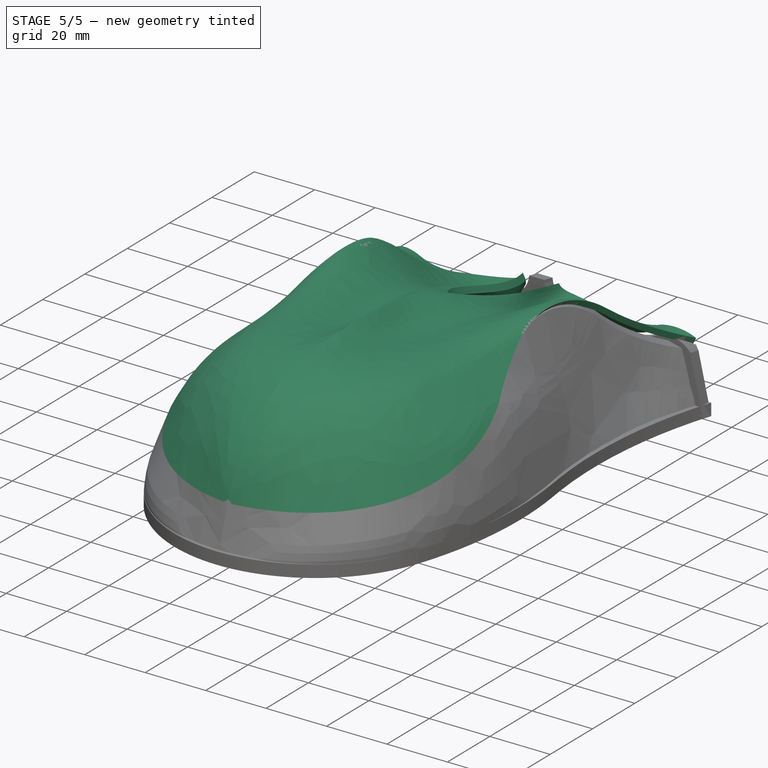
[diagram: stage 5 of 5 — iso view after this stage's code; geometry added in this stage tinted green]
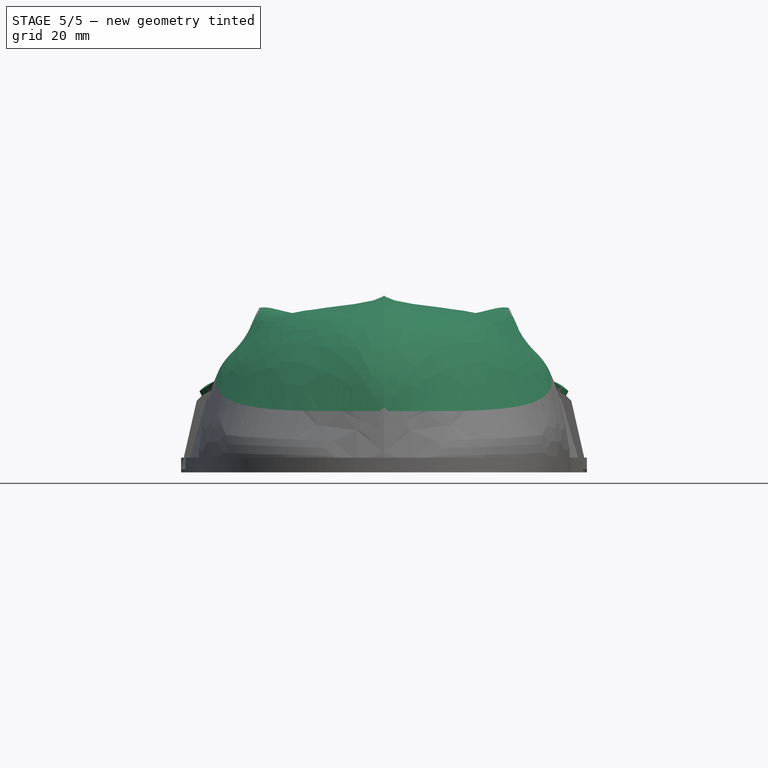
[diagram: stage 5 of 5 — front view after this stage's code; geometry added in this stage tinted green]
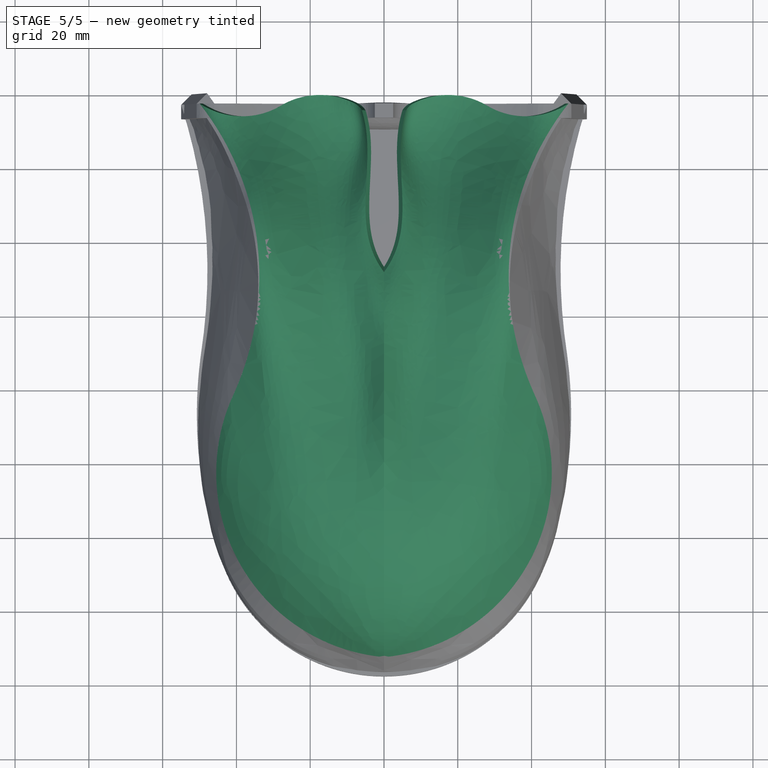
[diagram: stage 5 of 5 — top view after this stage's code; geometry added in this stage tinted green]
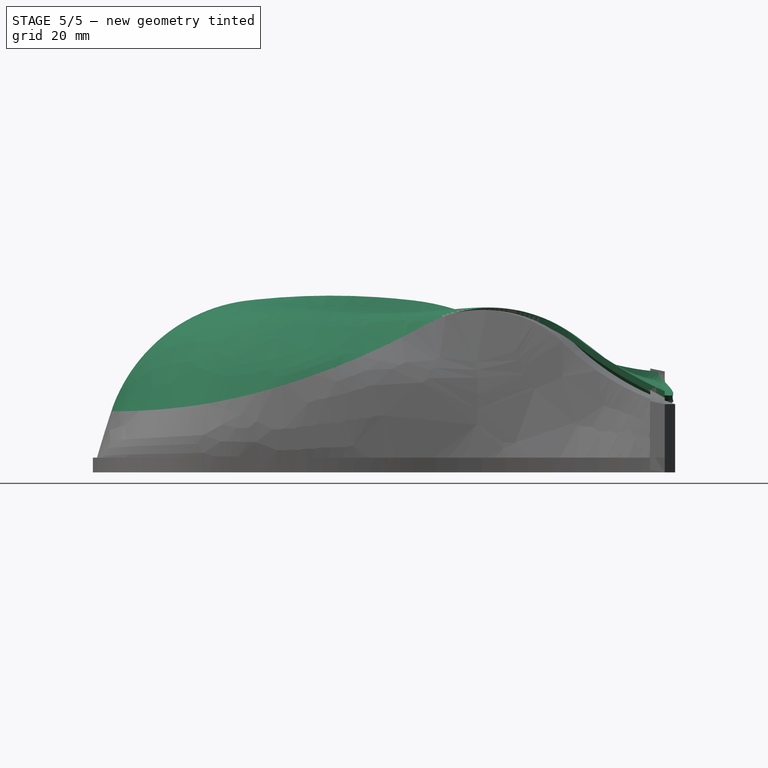
[diagram: stage 5 of 5 — right view after this stage's code; geometry added in this stage tinted green]
FEATURE [PartDesign::SubShapeBinder] Reference006  label="Reference006(Split)"
  BindCopyOnChange = 0
  BindMode = 0
  ClaimChildren = false
  Context = -> Body [Reference006.]
  EdgeTolerance = 1e-06
  FillStyle = 0
  FixShape = 1
  Fuse = false
  InvalidShape = false
  MakeFace = true
  MergeEdges = true
  OffsetFill = false
  OffsetIntersection = false
  OffsetJoinType = 0
  OffsetOpenResult = false
  Outline = false
  PartialLoad = false
  Relative = true
  SplitEdges = false
  Support = -> [Split]
  TightBound = false
  TreeRank = 503
  ValidateShape = false
  _Version = 8
FEATURE [PartDesign::SubShapeBinder] Reference007  label="Reference007(Split001)"
  BindCopyOnChange = 0
  BindMode = 0
  ClaimChildren = false
  Context = -> Body [Reference007.]
  EdgeTolerance = 1e-06
  FillStyle = 0
  FixShape = 1
  Fuse = false
  InvalidShape = false
  MakeFace = true
  MergeEdges = true
  OffsetFill = false
  OffsetIntersection = false
  OffsetJoinType = 0
  OffsetOpenResult = false
  Outline = false
  PartialLoad = false
  Relative = true
  SplitEdges = false
  Support = -> [Split001]
  TightBound = false
  TreeRank = 504
  ValidateShape = false
  _Version = 8
FEATURE [PartDesign::SubShapeBinder] Reference008  label="Reference008(Split002)"
  BindCopyOnChange = 0
  BindMode = 0
  ClaimChildren = false
  Context = -> Body [Reference008.]
  EdgeTolerance = 1e-06
  FillStyle = 0
  FixShape = 1
  Fuse = false
  InvalidShape = false
  MakeFace = true
  MergeEdges = true
  OffsetFill = false
  OffsetIntersection = false
  OffsetJoinType = 0
  OffsetOpenResult = false
  Outline = false
  PartialLoad = false
  Relative = true
  SplitEdges = false
  Support = -> [Split002]
  TightBound = false
  TreeRank = 505
  ValidateShape = false
  _Version = 8
FEATURE [App::FeaturePython] Constraints  # WARN: FeaturePython — macro-defined, semantics opaque (R4)
  TreeRank = 508
  _LinkVersion = 1
  _Version = 1
FEATURE [App::FeaturePython] Elements  # WARN: FeaturePython — macro-defined, semantics opaque (R4)
  TreeRank = 509
  _LinkVersion = 1
FEATURE [Surface::Filling] Surface015  label="Surface016"
  Anisotropy = false
  BoundaryEdges = -> [Wrap007,Wrap009,Wrap004,Wrap008]
  BoundaryFaces = -> [Wrap007,Wrap009,Wrap004,Wrap008]
  BoundaryOrder = [0,0,0,0]
  Degree = 3
  FixShape = 1
  InvalidShape = false
  Iterations = 2
  MaximumDegree = 8
  MaximumSegments = 9
  PointsOnCurve = 15
  TolAngular = 0.01
  TolCurvature = 0.1
  Tolerance2d = 1e-05
  Tolerance3d = 0.0001
  TreeRank = 512
  UnboundEdges = -> [Wrap,Wrap005]
  UnboundFaces = -> [Wrap,Wrap005]
  UnboundOrder = [0,0]
  ValidateShape = false
FEATURE [Part::FeaturePython] Clone  label="Top Shell Half001"  # Draft clone (typed FeaturePython)
  AttacherType = Attacher::AttachEngine3D
  FixShape = 1
  Fuse = false
  InvalidShape = false
  Objects = -> [Surface015]
  Placement = pos=(1,0,-2) rot=(0,0,1;0rad)
  Scale = (1,1,1)
  TreeRank = 342
  ValidateShape = false
  expr: Placement.Base.x = <<p>>.Wall / 2
  expr: Placement.Base.z = <<p>>.Wall * -1
FEATURE [Part::FeaturePython] Slice  # WARN: FeaturePython — macro-defined, semantics opaque (R4)
  Base = -> Clone
  FixShape = 1
  InvalidShape = false
  Mode = 1
  Tolerance = 0
  Tools = -> [Reference001]
  TreeRank = 348
  ValidateShape = false
FEATURE [Part::FeaturePython] Slice_child0  label="Slice.0"  # WARN: FeaturePython — macro-defined, semantics opaque (R4)
  Base = -> Slice
  FilterType = 1
  FixShape = 1
  InvalidShape = false
  Invert = false
  OverrideMaxVal = 0
  TreeRank = 345
  ValidateShape = false
  WindowFrom = 80
  WindowTo = 100
  items = 0
FEATURE [Part::FeaturePython] Slice_child1  label="Slice.1"  # WARN: FeaturePython — macro-defined, semantics opaque (R4)
  Base = -> Slice
  FilterType = 1
  FixShape = 1
  InvalidShape = false
  Invert = false
  OverrideMaxVal = 0
  TreeRank = 346
  ValidateShape = false
  WindowFrom = 80
  WindowTo = 100
  items = 1
FEATURE [App::DocumentObjectGroup] GrExplode_Slice  label="Shell Half SubSurface"
  ClaimAllChildren = true
  ExportMode = 1
  Group = -> [Slice_child0,Slice_child1]
  TreeRank = 349
  _GroupVersion = 1
FEATURE [PartDesign::FeatureWrap] Wrap030  label="Surface017"
  AddSubType = 0
  FixShape = 1
  Frozen = false
  InvalidShape = false
  NewSolid = false
  Suppress = false
  TreeRank = 513
  Type = 2
  ValidateShape = false
  WrapFeature = -> Surface015
FEATURE [PartDesign::Body] Body001  label="Shell Half Sketches"
  AutoGroupSolids = false
  ClaimAllChildren = false
  ExportMode = 0
  FixShape = 1
  Group = -> [Sketch003,Sketch004,Sketch005,Sketch006,Sketch011,Sketch013,Wrap002,Wrap003,Wrap004,Wrap005,Wrap006,Wrap007,Wrap008,Wrap009,Wrap,Sketch016,Import003,Binder,Wrap030]
  InvalidShape = false
  Origin = -> Origin001
  TreeRank = 59
  ValidateShape = false
  _ExportChildren = -> [Sketch003,Sketch004,Sketch005,Sketch006,Sketch011,Sketch013,Wrap002,Wrap003,Wrap004,Wrap005,Wrap006,Wrap007,Wrap008,Wrap009,Wrap,Sketch016,Import003,Binder,Wrap030]
  _GroupVersion = 1
FEATURE [Part::FeaturePython] Line004  label="Line008"  # WARN: FeaturePython — macro-defined, semantics opaque (R4)
  FixShape = 1
  InvalidShape = false
  TreeRank = 203
  ValidateShape = false
  Vertex1 = -> Slice_child0 [Vertex3]
  Vertex2 = -> Wrap030 [Vertex3]
FEATURE [Part::FeaturePython] Line005  label="Line009"  # WARN: FeaturePython — macro-defined, semantics opaque (R4)
  FixShape = 1
  InvalidShape = false
  TreeRank = 204
  ValidateShape = false
  Vertex1 = -> Wrap030 [Vertex2]
  Vertex2 = -> Slice_child0 [Vertex2]
FEATURE [Part::FeaturePython] Line006  label="Line010"  # WARN: FeaturePython — macro-defined, semantics opaque (R4)
  FixShape = 1
  InvalidShape = false
  TreeRank = 205
  ValidateShape = false
  Vertex1 = -> Wrap030 [Vertex4]
  Vertex2 = -> Slice_child0 [Vertex4]
FEATURE [Part::FeaturePython] Line007  label="Line011"  # WARN: FeaturePython — macro-defined, semantics opaque (R4)
  FixShape = 1
  InvalidShape = false
  TreeRank = 206
  ValidateShape = false
  Vertex1 = -> Slice_child0 [Vertex1]
  Vertex2 = -> Wrap030 [Vertex1]
FEATURE [Surface::Filling] Surface005  label="Surface010"
  Anisotropy = false
  BoundaryEdges = -> [Line007,Line006,Slice_child0,Wrap030]
  BoundaryFaces = -> [Line007,Line006,Slice_child0,Wrap030]
  BoundaryOrder = [0,0,0,0]
  Degree = 3
  FixShape = 1
  InvalidShape = false
  Iterations = 2
  MaximumDegree = 8
  MaximumSegments = 9
  PointsOnCurve = 15
  TolAngular = 0.01
  TolCurvature = 0.1
  Tolerance2d = 1e-05
  Tolerance3d = 0.0001
  TreeRank = 207
  ValidateShape = false
FEATURE [Surface::Filling] Surface006  label="Surface011"
  Anisotropy = false
  BoundaryEdges = -> [Line006,Line004,Slice_child0,Wrap030]
  BoundaryFaces = -> [Line006,Line004,Slice_child0,Wrap030]
  BoundaryOrder = [0,0,0,0]
  Degree = 3
  FixShape = 1
  InvalidShape = false
  Iterations = 2
  MaximumDegree = 8
  MaximumSegments = 9
  PointsOnCurve = 15
  TolAngular = 0.01
  TolCurvature = 0.1
  Tolerance2d = 1e-05
  Tolerance3d = 0.0001
  TreeRank = 208
  ValidateShape = false
FEATURE [Surface::Filling] Surface007  label="Surface012"
  Anisotropy = false
  BoundaryEdges = -> [Line007,Line005,Slice_child0,Wrap030]
  BoundaryFaces = -> [Line007,Line005,Slice_child0,Wrap030]
  BoundaryOrder = [0,0,0,0]
  Degree = 3
  FixShape = 1
  InvalidShape = false
  Iterations = 2
  MaximumDegree = 8
  MaximumSegments = 9
  PointsOnCurve = 15
  TolAngular = 0.01
  TolCurvature = 0.1
  Tolerance2d = 1e-05
  Tolerance3d = 0.0001
  TreeRank = 209
  ValidateShape = false
FEATURE [Surface::Filling] Surface008  label="Surface013"
  Anisotropy = false
  BoundaryEdges = -> [Surface007,Surface006,Slice_child0,Wrap030]
  BoundaryFaces = -> [Surface007,Surface006,Slice_child0,Wrap030]
  BoundaryOrder = [0,0,0,0]
  Degree = 3
  FixShape = 1
  InvalidShape = false
  Iterations = 2
  MaximumDegree = 8
  MaximumSegments = 9
  PointsOnCurve = 15
  TolAngular = 0.01
  TolCurvature = 0.1
  Tolerance2d = 1e-05
  Tolerance3d = 0.0001
  TreeRank = 210
  ValidateShape = false
FEATURE [Part::FeaturePython] Solid  # WARN: FeaturePython — macro-defined, semantics opaque (R4)
  Faces = -> [Surface005,Surface008,Surface007,Surface006,Slice_child0,Wrap030]
  FixShape = 1
  InvalidShape = false
  ShapeStatus = Solid
  TreeRank = 238
  ValidateShape = false
FEATURE [Part::FeaturePython] Clone001  label="Solid001"  # Draft clone (typed FeaturePython)
  AttacherType = Attacher::AttachEngine3D
  FixShape = 1
  Fuse = false
  InvalidShape = false
  Objects = -> [Solid]
  Scale = (1,1,1)
  TreeRank = 239
  ValidateShape = false
FEATURE [Part::Mirroring] Part__Mirroring  label="Solid001 (Mirror #1)"
  Base = (0,0,0)
  FixShape = 1
  InvalidShape = false
  Normal = (1,0,0)
  Source = -> Clone001
  TreeRank = 239
  ValidateShape = false
FEATURE [Part::Compound] Compound  label="Shell"
  FixShape = 1
  InvalidShape = false
  Links = -> [Solid,Part__Mirroring]
  TreeRank = 357
  ValidateShape = false
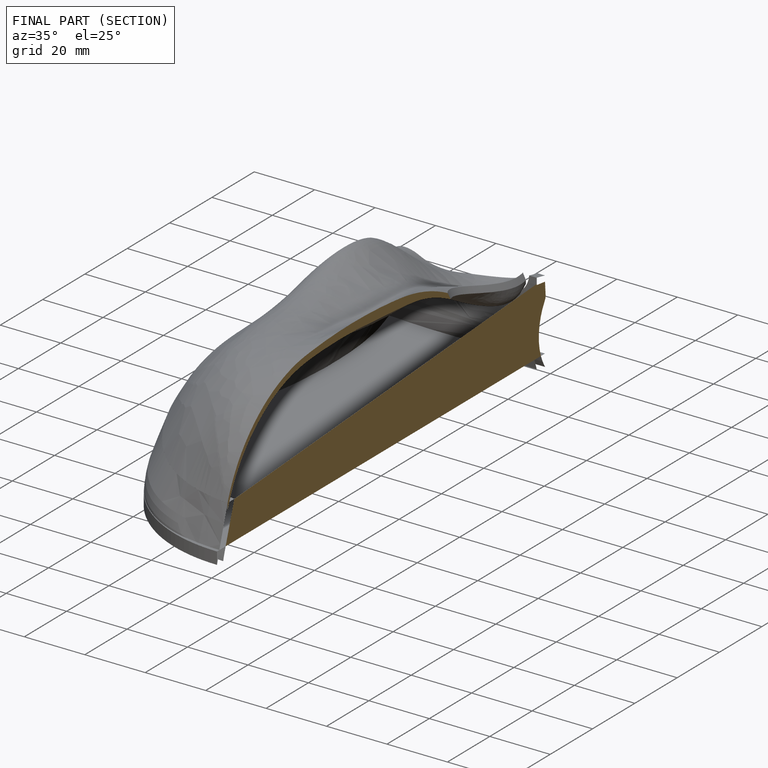
[diagram: finished part — half-section view (interior)]
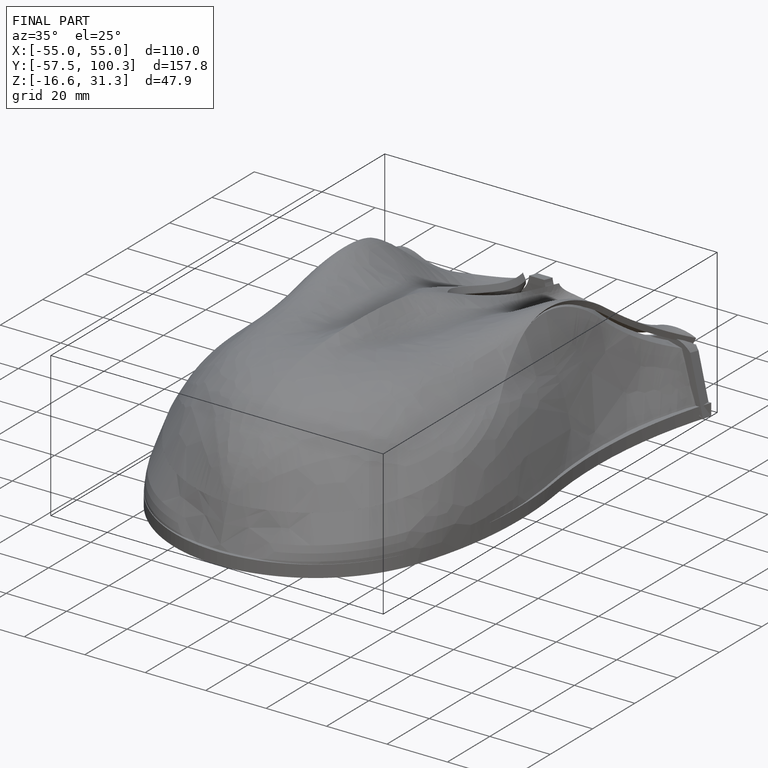
[diagram: finished part — iso view with bounding-box wireframe]
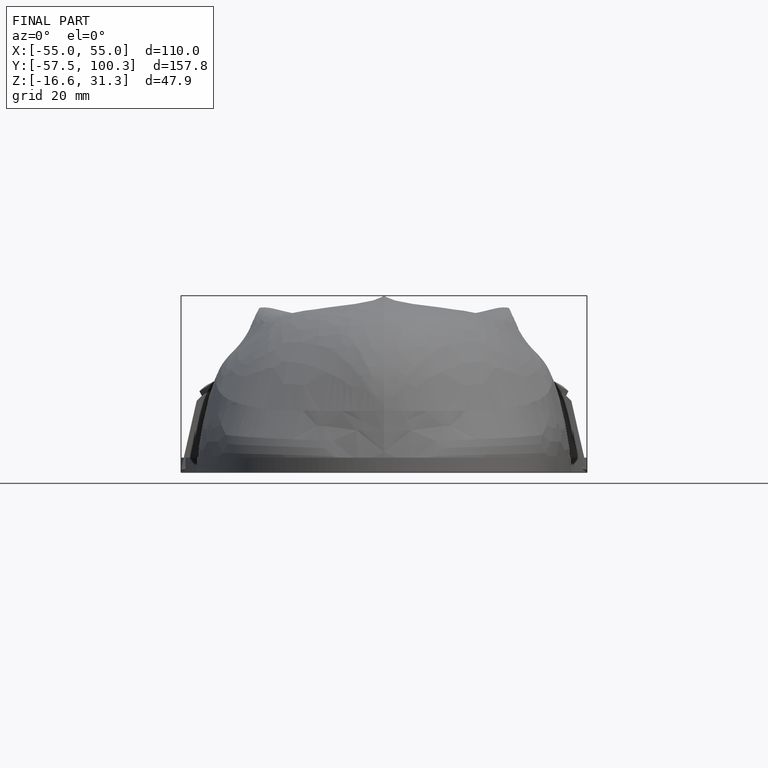
[diagram: finished part — front view with bounding-box wireframe]
